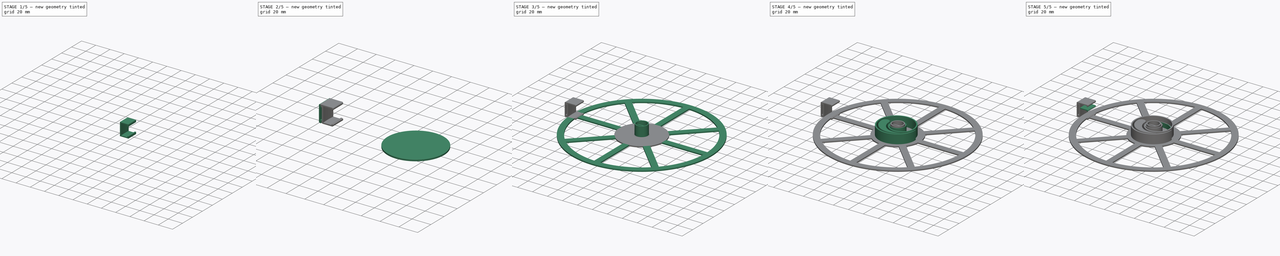
[diagram: build sequence overview — one tinted view per stage of 5, left to right]
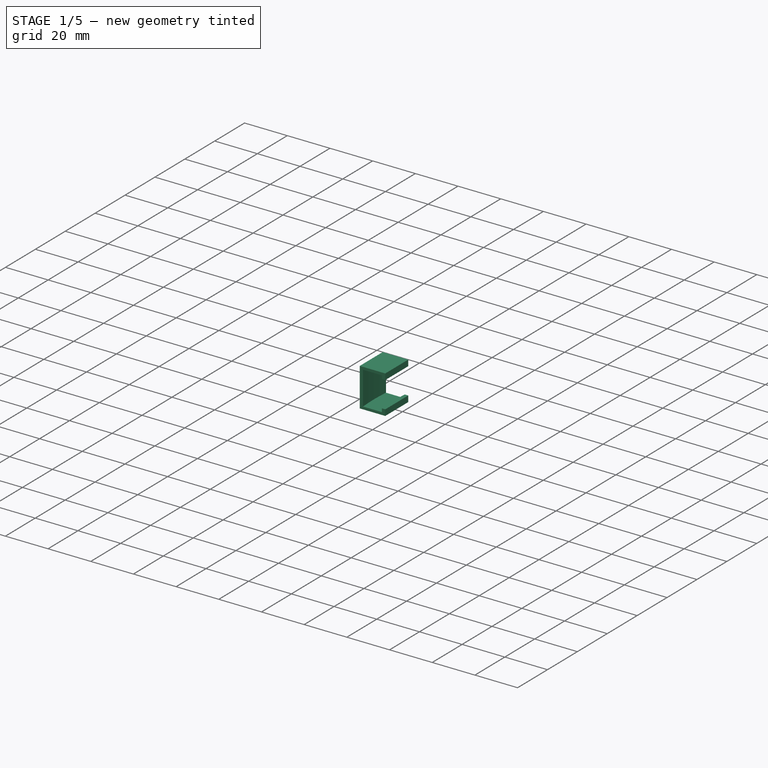
[diagram: stage 1 of 5 — iso view after this stage's code; geometry added in this stage tinted green]
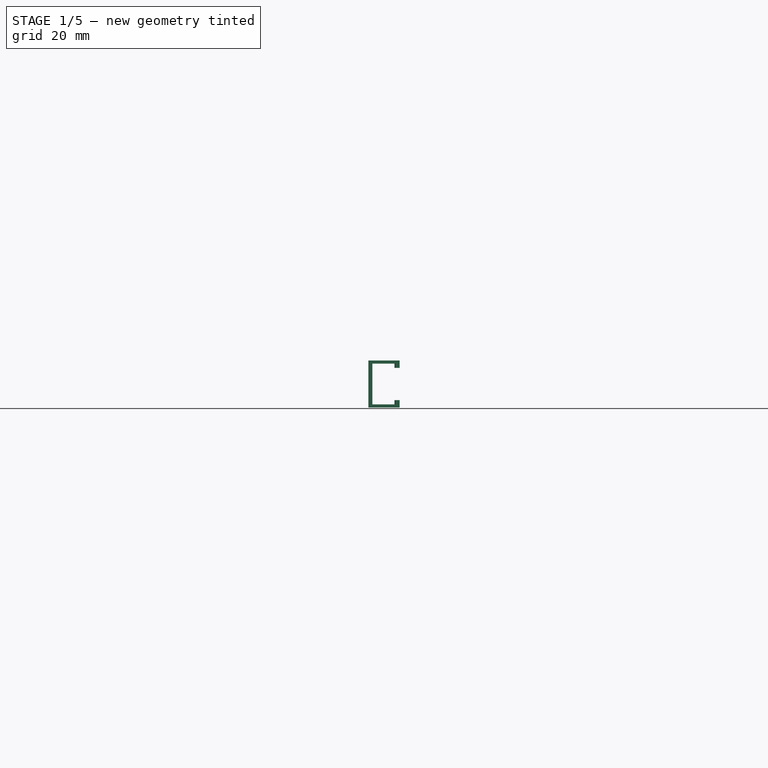
[diagram: stage 1 of 5 — front view after this stage's code; geometry added in this stage tinted green]
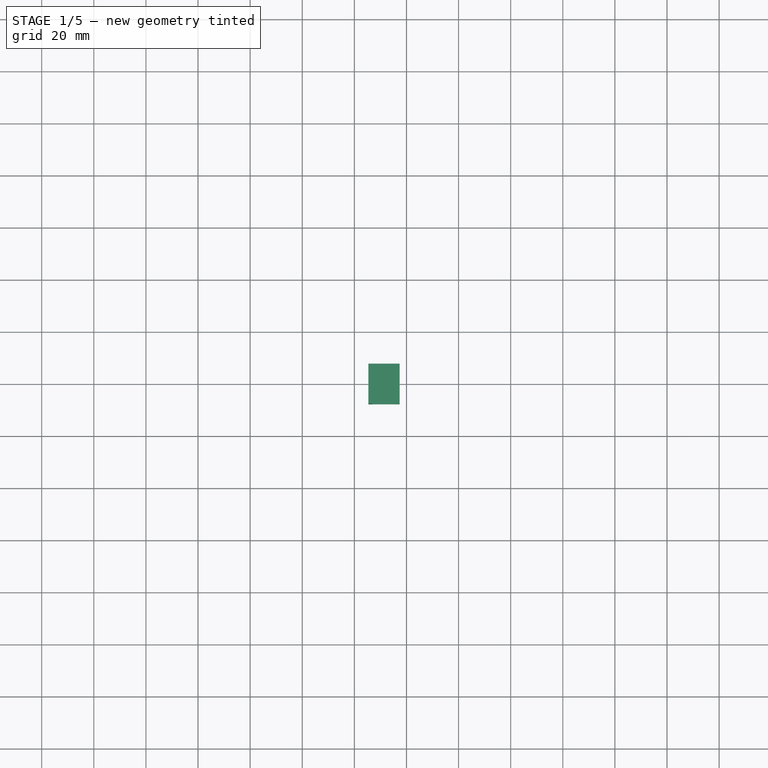
[diagram: stage 1 of 5 — top view after this stage's code; geometry added in this stage tinted green]
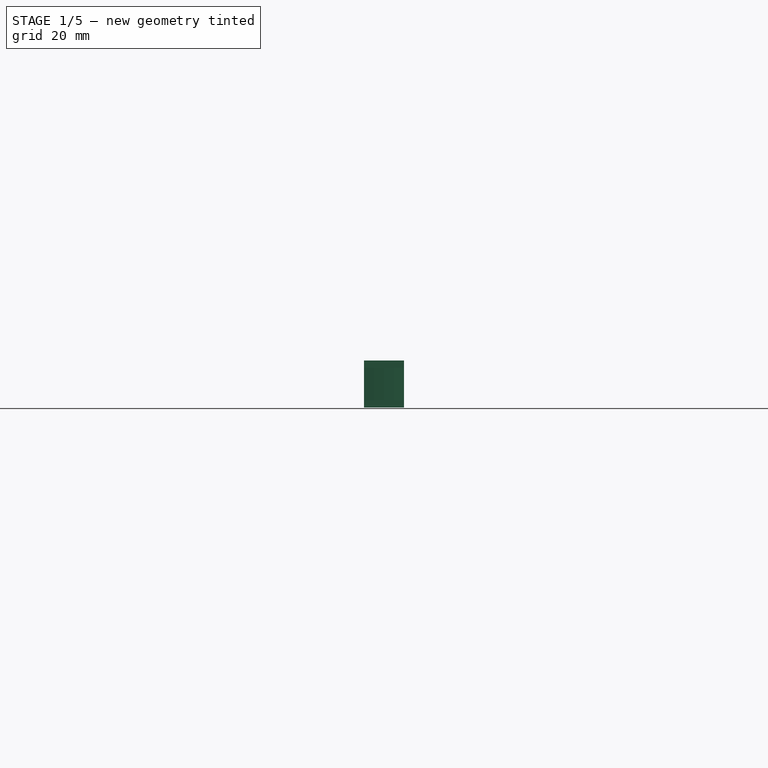
[diagram: stage 1 of 5 — right view after this stage's code; geometry added in this stage tinted green]
FCSTD DOCUMENT  (FreeCAD 1.0R39109 (Git))
Label: FlatEthCableSpool
License: All rights reserved
LicenseURL: http://en.wikipedia.org/wiki/All_rights_reserved
objects: Sketcher::SketchObject×37, PartDesign::Pad×27, PartDesign::ShapeBinder×12, PartDesign::Chamfer×10, PartDesign::Body×9, PartDesign::Pocket×7, PartDesign::Fillet×4, PartDesign::PolarPattern×2, PartDesign::FeatureBase×2, Spreadsheet::Sheet×1, PartDesign::Plane×1
note: 248 computed .brp shape members not serialized (recipe doc carries the construction recipe); baked Part::Feature solids carry a one-line shape summary decoded from their .brp

FEATURE [PartDesign::Body] Body001  label="Cap"
  AllowCompound = false
  Group = -> [Clone,ShapeBinder,ShapeBinder001,Sketch004,Pad002,Sketch011,Pocket002,Chamfer003]
  Origin = -> Origin001
  Tip = -> Chamfer003
FEATURE [Sketcher::SketchObject] Sketch012
  ArcFitTolerance = 1e-06
  AttachmentSupport = -> [XY_Plane]
  FullyConstrained = true
  MakeInternals = false
  MapMode = 5
  expr: Constraints[1] = <<Spreadsheet>>.WheelDiameter
  sketch-geometry (1):
    g0: Circle CenterX=0 CenterY=0 CenterZ=0 NormalX=0 NormalY=0 NormalZ=1 AngleXU=0 Radius=93
  constraints (2):
    c: Coincident(g0,g-1)
    c: Radius(g0) = 93
FEATURE [PartDesign::Pad] Pad008
  Direction = (0,0,1)
  Length = 1.6
  Length2 = 10
  Profile = -> Sketch012
  ReferenceAxis = -> Sketch012 [N_Axis]
  Suppressed = false
  Type = 0
FEATURE [Sketcher::SketchObject] Sketch014
  ArcFitTolerance = 1e-06
  AttachmentSupport = -> [XY_Plane]
  ExternalGeometry = -> [Sketch012]
  FullyConstrained = true
  MakeInternals = false
  MapMode = 5
  sketch-geometry (18):
    g0: LineSegment StartX=-29.7321 StartY=4 StartZ=0 EndX=-84.9058 EndY=4 EndZ=0
    g1: LineSegment StartX=-62.8659 StartY=57.2091 StartZ=0 EndX=-23.8522 EndY=18.1954 EndZ=0
    g2: ArcOfCircle CenterX=0 CenterY=0 CenterZ=0 NormalX=0 NormalY=0 NormalZ=1 AngleXU=0 Radius=30 StartAngle=2.48993 EndAngle=3.00786
    g3: ArcOfCircle CenterX=0 CenterY=0 CenterZ=0 NormalX=0 NormalY=0 NormalZ=1 AngleXU=0 Radius=85 StartAngle=2.40327 EndAngle=3.09452
    g4: LineSegment [constr] StartX=0 StartY=93 StartZ=0 EndX=0 EndY=-93 EndZ=0
    g5: LineSegment StartX=-18.1954 StartY=23.8522 StartZ=0 EndX=-57.2091 EndY=62.8659 EndZ=0
    g6: LineSegment [constr] StartX=-84.9058 StartY=4 StartZ=0 EndX=-84.9058 EndY=-4 EndZ=0
    g7: LineSegment [constr] StartX=-62.8659 StartY=57.2091 StartZ=0 EndX=-57.2091 EndY=62.8659 EndZ=0
    g8: ArcOfCircle CenterX=0 CenterY=0 CenterZ=0 NormalX=0 NormalY=0 NormalZ=1 AngleXU=0 Radius=85 StartAngle=1.61787 EndAngle=2.30912
    g9: LineSegment [constr] StartX=-93 StartY=0 StartZ=0 EndX=-84.9058 EndY=0 EndZ=0
    g10: LineSegment [constr] StartX=-84.9058 StartY=0 StartZ=0 EndX=93 EndY=0 EndZ=0
    g11: ArcOfCircle CenterX=0 CenterY=0 CenterZ=0 NormalX=0 NormalY=0 NormalZ=1 AngleXU=0 Radius=30 StartAngle=1.70453 EndAngle=2.22246
    g12: LineSegment StartX=-4 StartY=29.7321 StartZ=0 EndX=-4 EndY=84.9058 EndZ=0
    g13: LineSegment [constr] StartX=-4 StartY=84.9058 StartZ=0 EndX=4 EndY=84.9058 EndZ=0
    g14: LineSegment [constr] StartX=-84.9058 StartY=4 StartZ=0 EndX=-62.8659 EndY=57.2091 EndZ=0
    g15: LineSegment [constr] StartX=-57.2091 StartY=62.8659 StartZ=0 EndX=-4 EndY=84.9058 EndZ=0
    g16: LineSegment [constr] StartX=-78.5298 StartY=32.5281 StartZ=0 EndX=-26.7922 EndY=11.0977 EndZ=0
    g17: LineSegment [constr] StartX=-78.5298 StartY=32.5281 StartZ=0 EndX=-85.9208 EndY=35.5896 EndZ=0
  constraints (51):
    c: Horizontal(g0)
    c: Coincident(g2,g0)
    c: Coincident(g2,g1)
    c: Coincident(g3,g2)
    c: Coincident(g3,g0)
    c: Coincident(g3,g1)
    c: Radius(g2) = 30
    c: Angle(g1,g0) = 0.785398
    c: Vertical(g4)
    c: Coincident(g6,g0)
    c: Coincident(g7,g1)
    c: Coincident(g7,g5)
    c: Coincident(g8,g5)
    c: Equal(g8,g3)
    c: Coincident(g9,g10)
    c: Horizontal(g9)
    c: Horizontal(g10)
    c: Symmetric(g0,g6,g9)
    c: Vertical(g6)
    c: Parallel(g1,g5)
    c: Coincident(g11,g5)
    c: Equal(g11,g2)
    c: Coincident(g12,g11)
    c: Coincident(g12,g8)
    c: Vertical(g12)
    c: Coincident(g13,g8)
    c: Symmetric(g13,g8,g4)
    c: Equal(g6,g7)
    c: Equal(g7,g13)
    c: Coincident(g14,g0)
    c: Coincident(g14,g1)
    c: Coincident(g15,g5)
    c: Coincident(g15,g8)
    c: Equal(g14,g15)
    c: PointOnObject(g10,g-3)
    c: PointOnObject(g4,g-3)
    c: Coincident(g11,g2)
    c: Coincident(g11,g8)
    c: PointOnObject(g9,g-3)
    c: PointOnObject(g4,g-3)
    c: PointOnObject(g-3,g4)
    c: PointOnObject(g-3,g10)
    c: Coincident(g-3,g2)
    c: Symmetric(g1,g0,g16)
    c: PointOnObject(g16,g3)
    c: PointOnObject(g-3,g16)
    c: Coincident(g17,g16)
    c: PointOnObject(g17,g-3)
    c: Parallel(g17,g16)
    c: Distance(g17) = 8  'SpokeWidth'
    c: Equal(g17,g6)
FEATURE [PartDesign::Pocket] Pocket003
  BaseFeature = -> Pad008
  Direction = (0,0,-1)
  Length = 5
  Length2 = 5
  Profile = -> Sketch014
  ReferenceAxis = -> Sketch014 [N_Axis]
  Reversed = true
  Suppressed = false
  Type = 1
FEATURE [PartDesign::PolarPattern] PolarPattern001
  Angle = 360
  Axis = -> Sketch014 [N_Axis]
  BaseFeature = -> Pocket003
  Mode = 0
  Occurrences = 4
  Offset = 120
  Originals = -> [Pocket003]
  Suppressed = false
  TransformMode = 0
FEATURE [Sketcher::SketchObject] Sketch015
  ArcFitTolerance = 1e-06
  AttachmentOffset = pos=(0,0,1.6) rot=(0,0,1;0rad)
  AttachmentSupport = -> [XY_Plane]
  ExternalGeometry = -> [Sketch012]
  FullyConstrained = true
  MakeInternals = false
  MapMode = 5
  Placement = pos=(0,0,1.6) rot=(0,0,1;0rad)
  expr: .AttachmentOffset.Base.z = <<Pad008>>.Length
  sketch-geometry (1):
    g0: Circle CenterX=0 CenterY=0 CenterZ=0 NormalX=0 NormalY=0 NormalZ=1 AngleXU=0 Radius=8
  constraints (2):
    c: Radius(g0) = 8
    c: Coincident(g0,g-3)
FEATURE [Sketcher::SketchObject] Sketch013
  ArcFitTolerance = 1e-06
  AttachmentOffset = pos=(0,0,1.6) rot=(0,0,1;0rad)
  AttachmentSupport = -> [XY_Plane]
  ExternalGeometry = -> [Sketch012,Sketch015]
  FullyConstrained = true
  MakeInternals = false
  MapMode = 5
  Placement = pos=(0,0,1.6) rot=(0,0,1;0rad)
  expr: .AttachmentOffset.Base.z = <<Pad008>>.Length
  sketch-geometry (30):
    g0: ArcOfCircle CenterX=1.0615e-12 CenterY=8.65e-13 CenterZ=0 NormalX=0 NormalY=0 NormalZ=1 AngleXU=0 Radius=23.4 StartAngle=3.14159 EndAngle=6.28319
    g1: ArcOfCircle CenterX=-1.75 CenterY=1.01326e-11 CenterZ=0 NormalX=0 NormalY=0 NormalZ=1 AngleXU=0 Radius=23.25 StartAngle=-1.599e-13 EndAngle=3.14159
    g2: ArcOfCircle CenterX=-1.75 CenterY=1.01326e-11 CenterZ=0 NormalX=0 NormalY=0 NormalZ=1 AngleXU=0 Radius=21.65 StartAngle=-1.714e-13 EndAngle=3.14159
    g3: LineSegment [constr] StartX=21.5 StartY=6.4214e-12 StartZ=0 EndX=23.4 EndY=6.4214e-12 EndZ=0
    g4: LineSegment [constr] StartX=23.4 StartY=6.4214e-12 StartZ=0 EndX=25 EndY=6.4214e-12 EndZ=0
    g5: LineSegment [constr] StartX=19.9 StartY=6.4214e-12 StartZ=0 EndX=21.5 EndY=6.4214e-12 EndZ=0
    g6: Circle CenterX=1.0615e-12 CenterY=8.65e-13 CenterZ=0 NormalX=0 NormalY=0 NormalZ=1 AngleXU=0 Radius=8
    g7: LineSegment [constr] StartX=-21.5 StartY=6.4214e-12 StartZ=0 EndX=-11.5 EndY=6.4214e-12 EndZ=0
    g8: LineSegment [constr] StartX=-25 StartY=6.4214e-12 StartZ=0 EndX=-23.4 EndY=6.4214e-12 EndZ=0
    g9: LineSegment [constr] StartX=-23.4 StartY=6.4214e-12 StartZ=0 EndX=-21.5 EndY=6.4214e-12 EndZ=0
    g10: LineSegment [constr] StartX=-8 StartY=6.4214e-12 StartZ=0 EndX=19.9 EndY=6.4214e-12 EndZ=0
    g11: LineSegment [constr] StartX=-11.5 StartY=6.4214e-12 StartZ=0 EndX=-9.6 EndY=6.4214e-12 EndZ=0
    g12: LineSegment [constr] StartX=-9.6 StartY=6.4214e-12 StartZ=0 EndX=-8 EndY=6.4214e-12 EndZ=0
    g13: ArcOfCircle CenterX=5.95 CenterY=1.3502e-09 CenterZ=0 NormalX=0 NormalY=0 NormalZ=1 AngleXU=0 Radius=15.55 StartAngle=3.14159 EndAngle=6.28319
    g14: ArcOfCircle CenterX=1.0615e-12 CenterY=8.65e-13 CenterZ=0 NormalX=0 NormalY=0 NormalZ=1 AngleXU=0 Radius=9.6 StartAngle=4.08524 EndAngle=9.42478
    g15: ArcOfCircle [constr] CenterX=1.0615e-12 CenterY=8.65e-13 CenterZ=0 NormalX=0 NormalY=0 NormalZ=1 AngleXU=0 Radius=9.6 StartAngle=3.14159 EndAngle=4.08524
    g16: ArcOfCircle [constr] CenterX=5.95 CenterY=9.5323e-12 CenterZ=0 NormalX=0 NormalY=0 NormalZ=1 AngleXU=0 Radius=13.95 StartAngle=3.14159 EndAngle=3.73262
    g17: ArcOfCircle CenterX=5.95 CenterY=9.5323e-12 CenterZ=0 NormalX=0 NormalY=0 NormalZ=1 AngleXU=0 Radius=13.95 StartAngle=3.73262 EndAngle=6.28319
    g18: ArcOfCircle CenterX=-16.5 CenterY=6.4192e-12 CenterZ=0 NormalX=0 NormalY=0 NormalZ=1 AngleXU=0 Radius=5 StartAngle=0 EndAngle=3.14159
    g19: ArcOfCircle CenterX=1.0615e-12 CenterY=8.65e-13 CenterZ=0 NormalX=0 NormalY=0 NormalZ=1 AngleXU=0 Radius=21.5 StartAngle=3.14159 EndAngle=5.45062
    g20: ArcOfCircle CenterX=5.95 CenterY=1.3502e-09 CenterZ=0 NormalX=0 NormalY=0 NormalZ=1 AngleXU=0 Radius=17.45 StartAngle=3.14159 EndAngle=5.20007
    g21: ArcOfCircle CenterX=14.2672 CenterY=-15.6808 CenterZ=0 NormalX=0 NormalY=0 NormalZ=1 AngleXU=0 Radius=0.3 StartAngle=5.45062 EndAngle=8.34166
    g22: ArcOfCircle CenterX=1.0615e-12 CenterY=8.65e-13 CenterZ=0 NormalX=0 NormalY=0 NormalZ=1 AngleXU=0 Radius=25 StartAngle=3.14159 EndAngle=5.49779
    g23: ArcOfCircle [constr] CenterX=1.0615e-12 CenterY=8.65e-13 CenterZ=0 NormalX=0 NormalY=0 NormalZ=1 AngleXU=0 Radius=25 StartAngle=5.49779 EndAngle=6.28319
    g24: LineSegment [constr] StartX=0 StartY=0 StartZ=0 EndX=17.6777 EndY=-17.6777 EndZ=0
    g25: LineSegment [constr] StartX=6e-16 StartY=23.184 StartZ=0 EndX=6e-16 EndY=-25 EndZ=0
    g26: LineSegment [constr] StartX=6e-16 StartY=-25 StartZ=0 EndX=17.6777 EndY=-17.6777 EndZ=0
    g27: LineSegment [constr] StartX=17.6777 StartY=-17.6777 StartZ=0 EndX=25 EndY=6.4198e-12 EndZ=0
    g28: ArcOfCircle CenterX=2.1632 CenterY=-2.1632 CenterZ=0 NormalX=0 NormalY=0 NormalZ=1 AngleXU=0 Radius=21.9408 StartAngle=5.49779 EndAngle=6.38194
    g29: ArcOfCircle CenterX=23.6985 CenterY=-0.0295778 CenterZ=0 NormalX=0 NormalY=0 NormalZ=1 AngleXU=0 Radius=0.3 StartAngle=0.0987529 EndAngle=3.04284
  constraints (80):
    c: Coincident(g0,g22)
    c: Coincident(g1,g8)
    c: Coincident(g5,g1)
    c: Coincident(g2,g1)
    c: Coincident(g3,g5)
    c: Horizontal(g3)
    c: Coincident(g4,g3)
    c: Horizontal(g4)
    c: Coincident(g23,g4)
    c: Coincident(g22,g1)
    c: Coincident(g0,g3)
    c: Coincident(g0,g2)
    c: Coincident(g10,g5)
    c: Horizontal(g5)
    c: Coincident(g10,g2)
    c: DistanceX(g3,g3) = 1.9
    c: Coincident(g6,g22)
    c: Coincident(g9,g7)
    c: Coincident(g7,g11)
    c: Horizontal(g7)
    c: Coincident(g8,g9)
    c: Horizontal(g8)
    c: Horizontal(g9)
    c: PointOnObject(g22,g8)
    c: PointOnObject(g1,g8)
    c: Coincident(g8,g0)
    c: Coincident(g12,g10)
    c: Horizontal(g10)
    c: PointOnObject(g12,g6)
    c: Coincident(g11,g12)
    c: Horizontal(g11)
    c: Horizontal(g12)
    c: Coincident(g14,g22)
    c: Equal(g9,g11)
    c: DistanceX(g11,g11) = 1.9
    c: Coincident(g6,g-3)  '__ANCHOR__'
    c: Tangent(g16,g6) = -1.5708
    c: Tangent(g17,g2) = -1.5708
    c: Tangent(g13,g1) = -1.5708
    c: Coincident(g14,g15)
    c: Coincident(g14,g15)
    c: Tangent(g13,g14) = -1.5708
    c: Coincident(g14,g11)
    c: Coincident(g16,g17)
    c: Coincident(g16,g17)
    c: Coincident(g16,g14)
    c: PointOnObject(g15,g16)
    c: Equal(g-4,g6)
    c: Coincident(g18,g7)
    c: Coincident(g18,g7)
    c: PointOnObject(g18,g7)
    c: Coincident(g19,g7)
    c: Coincident(g0,g19)
    c: Coincident(g20,g7)
    c: Coincident(g20,g13)
    c: Diameter(g21) = 0.6
    c: Coincident(g22,g23)
    c: Coincident(g22,g23)
    c: Radius(g22) = 25  'Ro'
    c: Coincident(g24,g22)
    c: PointOnObject(g25,g1)
    c: PointOnObject(g25,g22)
    c: Vertical(g25)
    c: PointOnObject(g-4,g25)
    c: Coincident(g-4,g24)
    c: Coincident(g26,g25)
    c: Coincident(g26,g22)
    c: Coincident(g27,g22)
    c: Coincident(g27,g4)
    c: Equal(g26,g27)
    c: Tangent(g19,g21) = -1.5708
    c: Tangent(g21,g20) = 1.5708
    c: Equal(g12,g8)
    c: Tangent(g28,g22) = -1.5708
    c: PointOnObject(g28,g4)
    c: Coincident(g29,g0)
    c: Tangent(g29,g28) = -1.5708
    c: Radius(g29) = 0.3
    c: DistanceX(g8,g8) = 1.6
    c: Radius(g18) = 5
FEATURE [PartDesign::Pocket] Pocket004
  BaseFeature = -> PolarPattern001
  Direction = (0,0,-1)
  Length = 5
  Length2 = 5
  Profile = -> Sketch015
  ReferenceAxis = -> Sketch015 [N_Axis]
  Suppressed = false
  Type = 1
FEATURE [PartDesign::Pad] Pad009
  BaseFeature = -> Pocket004
  Direction = (0,0,1)
  Length = 12
  Length2 = 10
  Profile = -> Sketch013
  ReferenceAxis = -> Sketch013 [N_Axis]
  Suppressed = false
  Type = 0
FEATURE [PartDesign::Body] Body005  label="Lock_D"
  AllowCompound = false
  Group = -> [ShapeBinder006,ShapeBinder007,Sketch017,Sketch018,Pad011,Sketch019,Pad012,Sketch020,Pad013,Sketch021,Pad014,Sketch022,Pad015,Chamfer004,Fillet002]
  Origin = -> Origin005
  Placement = pos=(0,0,-1.4) rot=(0,0,1;0rad)
  Tip = -> Fillet002
  expr: .Placement.Base.z = -<<Pad011>>.Length - 0.2 mm
FEATURE [PartDesign::ShapeBinder] ShapeBinder010
  Support = -> [Sketch012]
  TraceSupport = false
FEATURE [PartDesign::ShapeBinder] ShapeBinder011
  Support = -> [Sketch014]
  TraceSupport = false
FEATURE [Sketcher::SketchObject] Sketch030
  ArcFitTolerance = 1e-06
  AttachmentSupport = -> [XY_Plane005]
  ExternalGeometry = -> [ShapeBinder011,ShapeBinder010]
  FullyConstrained = true
  MakeInternals = false
  MapMode = 5
  expr: Constraints[17] = <<Spreadsheet>>.WallThickness
  expr: Constraints[34] = <<Sketch014>>.Constraints.SpokeWidth + <<Spreadsheet>>.LockTolerance * 2
  expr: Constraints[37] = <<Spreadsheet>>.ThinWallThickness
  sketch-geometry (15):
    g0: LineSegment StartX=-84.2505 StartY=-7.68248 StartZ=0 EndX=-93.0835 EndY=-7.68248 EndZ=0
    g1: LineSegment StartX=-84.2505 StartY=7.68248 StartZ=0 EndX=-93.0835 EndY=7.68248 EndZ=0
    g2: LineSegment [constr] StartX=-93.4 StartY=0 StartZ=0 EndX=-93 EndY=0 EndZ=0
    g3: LineSegment [constr] StartX=-93 StartY=0 StartZ=0 EndX=-85 EndY=0 EndZ=0
    g4: LineSegment [constr] StartX=-85 StartY=0 StartZ=0 EndX=-84.6 EndY=0 EndZ=0
    g5: LineSegment StartX=-93.0835 StartY=7.68248 StartZ=0 EndX=-94.6 EndY=7.68248 EndZ=0
    g6: LineSegment StartX=-93.0835 StartY=-7.68248 StartZ=0 EndX=-94.6 EndY=-7.68248 EndZ=0
    g7: LineSegment StartX=-84.2505 StartY=7.68248 StartZ=0 EndX=-82.6505 EndY=7.68248 EndZ=0
    g8: LineSegment StartX=-84.2505 StartY=-7.68248 StartZ=0 EndX=-82.6505 EndY=-7.68248 EndZ=0
    g9: LineSegment [constr] StartX=-23.8522 StartY=18.1954 StartZ=0 EndX=-29.7321 EndY=4 EndZ=0
    g10: LineSegment StartX=-82.6505 StartY=7.68248 StartZ=0 EndX=-82.6505 EndY=-7.68248 EndZ=0
    g11: ArcOfCircle CenterX=0 CenterY=0 CenterZ=0 NormalX=0 NormalY=0 NormalZ=1 AngleXU=0 Radius=84.6 StartAngle=3.05066 EndAngle=3.23253
    g12: ArcOfCircle CenterX=0 CenterY=0 CenterZ=0 NormalX=0 NormalY=0 NormalZ=1 AngleXU=0 Radius=93.4 StartAngle=3.05925 EndAngle=3.22394
    g13: LineSegment [constr] StartX=-93.4 StartY=0 StartZ=0 EndX=-94.6 EndY=0 EndZ=0
    g14: LineSegment StartX=-94.6 StartY=7.68248 StartZ=0 EndX=-94.6 EndY=-7.68248 EndZ=0
  constraints (43):
    c: PointOnObject(g2,g-4)
    c: PointOnObject(g3,g-3)
    c: Coincident(g2,g3)
    c: Coincident(g4,g3)
    c: Coincident(g6,g0)
    c: Equal(g4,g2)
    c: Coincident(g9,g-5)
    c: Coincident(g9,g-6)
    c: Equal(g9,g10)
    c: Coincident(g11,g1)
    c: Coincident(g11,g0)
    c: Coincident(g8,g0)
    c: Coincident(g7,g1)
    c: Coincident(g11,g-4)
    c: PointOnObject(g4,g11)
    c: Coincident(g8,g10)
    c: Coincident(g7,g10)
    c: DistanceX(g7,g7) = 1.6
    c: Horizontal(g3)
    c: Horizontal(g2)
    c: Horizontal(g8)
    c: Horizontal(g0)
    c: Horizontal(g6)
    c: Horizontal(g5)
    c: Horizontal(g1)
    c: Horizontal(g7)
    c: Horizontal(g4)
    c: PointOnObject(g-4,g3)
    c: Coincident(g12,g1)
    c: Coincident(g12,g0)
    c: Coincident(g1,g5)
    c: Coincident(g12,g-4)
    c: PointOnObject(g2,g12)
    c: Symmetric(g8,g7,g3)
    c: DistanceX(g2,g4) = 8.8
    c: Coincident(g13,g2)
    c: Horizontal(g13)
    c: DistanceX(g13,g13) = 1.2
    c: Coincident(g14,g5)
    c: Coincident(g14,g6)
    c: Vertical(g14)
    c: PointOnObject(g13,g14)
    c: DistanceY(g6,g5) = 15.365  'Length'
FEATURE [PartDesign::Plane] DatumPlane
  AttachmentSupport = -> [Sketch030]
  Length = 138.259
  MapMode = 7
  Placement = pos=(-94.6,-7.68248,0) rot=(0,0.707107,0.707107;3.14159rad)
  ResizeMode = 0
  Width = 65.6589
FEATURE [Sketcher::SketchObject] Sketch031
  ArcFitTolerance = 1e-06
  AttachmentSupport = -> [DatumPlane]
  ExternalGeometry = -> [Sketch030]
  FullyConstrained = true
  MakeInternals = false
  MapMode = 5
  Placement = pos=(-94.6,-7.68248,0) rot=(0,0.707107,0.707107;3.14159rad)
  expr: Constraints[22] = <<Spreadsheet>>.ThinWallThickness
  expr: Constraints[9] = <<Pad021>>.Length + <<Pad022>>.Length + <<Pad023>>.Length
  sketch-geometry (8):
    g0: LineSegment StartX=1.51e-14 StartY=15.1 StartZ=0 EndX=1.51e-14 EndY=18 EndZ=0
    g1: LineSegment StartX=1.51e-14 StartY=18 StartZ=0 EndX=3 EndY=18 EndZ=0
    g2: LineSegment StartX=3 StartY=18 StartZ=0 EndX=3 EndY=0 EndZ=0
    g3: LineSegment StartX=3 StartY=0 StartZ=0 EndX=0.2 EndY=0 EndZ=0
    g4: LineSegment StartX=0.2 StartY=0 StartZ=0 EndX=0.2 EndY=2.9 EndZ=0
    g5: LineSegment StartX=0.2 StartY=2.9 StartZ=0 EndX=1.8 EndY=2.9 EndZ=0
    g6: LineSegment StartX=1.8 StartY=2.9 StartZ=0 EndX=1.8 EndY=15.1 EndZ=0
    g7: LineSegment StartX=1.8 StartY=15.1 StartZ=0 EndX=1.51e-14 EndY=15.1 EndZ=0
  constraints (24):
    c: PointOnObject(g0,g-2)
    c: Coincident(g1,g0)
    c: Horizontal(g1)
    c: Vertical(g2)
    c: Coincident(g3,g2)
    c: Horizontal(g3)
    c: Coincident(g1,g2)
    c: PointOnObject(g-3,g3)
    c: DistanceX(g-3,g3) = 0.2
    c: DistanceY(g2,g2) = 18
    c: Vertical(g0)
    c: Coincident(g4,g3)
    c: Vertical(g4)
    c: Coincident(g5,g4)
    c: Horizontal(g5)
    c: Coincident(g6,g5)
    c: Vertical(g6)
    c: Coincident(g7,g6)
    c: Coincident(g7,g0)
    c: Horizontal(g7)
    c: Equal(g4,g0)
    c: DistanceY(g4,g0) = 12.2
    c: DistanceX(g6,g1) = 1.2
    c: DistanceX(g0,g6) = 1.8
FEATURE [Sketcher::SketchObject] Sketch032
  ArcFitTolerance = 1e-06
  AttachmentSupport = -> [XY_Plane005]
  ExternalGeometry = -> [Sketch030]
  FullyConstrained = true
  MakeInternals = false
  MapMode = 5
  sketch-geometry (4):
    g0: LineSegment StartX=-94.6 StartY=7.68248 StartZ=0 EndX=-94.6 EndY=-7.68248 EndZ=0
    g1: LineSegment StartX=-94.6 StartY=-7.68248 StartZ=0 EndX=-82.6505 EndY=-7.68248 EndZ=0
    g2: LineSegment StartX=-82.6505 StartY=-7.68248 StartZ=0 EndX=-82.6505 EndY=7.68248 EndZ=0
    g3: LineSegment StartX=-82.6505 StartY=7.68248 StartZ=0 EndX=-94.6 EndY=7.68248 EndZ=0
  constraints (8):
    c: Coincident(g0,g1)
    c: Coincident(g1,g2)
    c: Coincident(g2,g3)
    c: Coincident(g3,g0)
    c: Coincident(g0,g-3)
    c: Coincident(g1,g-4)
    c: Coincident(g2,g-4)
    c: Coincident(g0,g-3)
FEATURE [PartDesign::Pad] Pad021
  Direction = (0,0,1)
  Length = 1.2
  Length2 = 10
  Profile = -> Sketch032
  ReferenceAxis = -> Sketch032 [N_Axis]
  Suppressed = false
  Type = 0
  expr: Length = <<Spreadsheet>>.ThinWallThickness
FEATURE [Sketcher::SketchObject] Sketch033
  ArcFitTolerance = 1e-06
  AttachmentOffset = pos=(0,0,1.2) rot=(0,0,1;0rad)
  AttachmentSupport = -> [XY_Plane005]
  ExternalGeometry = -> [Sketch030]
  FullyConstrained = true
  MakeInternals = false
  MapMode = 5
  Placement = pos=(0,0,1.2) rot=(0,0,1;0rad)
  expr: .AttachmentOffset.Base.z = <<Pad021>>.Length
  sketch-geometry (4):
    g0: ArcOfCircle CenterX=7.8e-15 CenterY=-1.99e-14 CenterZ=0 NormalX=0 NormalY=0 NormalZ=1 AngleXU=0 Radius=93.4 StartAngle=3.05925 EndAngle=3.22394
    g1: LineSegment StartX=-93.0835 StartY=7.68248 StartZ=0 EndX=-94.6 EndY=7.68248 EndZ=0
    g2: LineSegment StartX=-94.6 StartY=7.68248 StartZ=0 EndX=-94.6 EndY=-7.68248 EndZ=0
    g3: LineSegment StartX=-94.6 StartY=-7.68248 StartZ=0 EndX=-93.0835 EndY=-7.68248 EndZ=0
  constraints (9):
    c: Coincident(g0,g-3)
    c: Coincident(g0,g-3)
    c: Equal(g-3,g0)
    c: Coincident(g0,g1)
    c: Coincident(g1,g-4)
    c: Coincident(g1,g2)
    c: Coincident(g2,g-4)
    c: Coincident(g2,g3)
    c: Coincident(g3,g0)
FEATURE [PartDesign::Pad] Pad022
  BaseFeature = -> Pad021
  Direction = (0,0,1)
  Length = 15.6
  Length2 = 10
  Profile = -> Sketch033
  ReferenceAxis = -> Sketch033 [N_Axis]
  Suppressed = false
  Type = 0
  expr: Length = <<Pad008>>.Length * 2 + <<Pad009>>.Length + <<Spreadsheet>>.LockTolerance
FEATURE [Sketcher::SketchObject] Sketch034
  ArcFitTolerance = 1e-06
  AttachmentOffset = pos=(0,0,16.8) rot=(0,0,1;0rad)
  AttachmentSupport = -> [XY_Plane005]
  ExternalGeometry = -> [Sketch030]
  FullyConstrained = true
  MakeInternals = false
  MapMode = 5
  Placement = pos=(0,0,16.8) rot=(0,0,1;0rad)
  expr: .AttachmentOffset.Base.z = <<Pad021>>.Length + <<Pad022>>.Length
  sketch-geometry (4):
    g0: LineSegment StartX=-94.6 StartY=7.68248 StartZ=0 EndX=-94.6 EndY=-7.68248 EndZ=0
    g1: LineSegment StartX=-94.6 StartY=-7.68248 StartZ=0 EndX=-82.6505 EndY=-7.68248 EndZ=0
    g2: LineSegment StartX=-82.6505 StartY=-7.68248 StartZ=0 EndX=-82.6505 EndY=7.68248 EndZ=0
    g3: LineSegment StartX=-82.6505 StartY=7.68248 StartZ=0 EndX=-94.6 EndY=7.68248 EndZ=0
  constraints (8):
    c: Coincident(g0,g1)
    c: Coincident(g1,g2)
    c: Coincident(g2,g3)
    c: Coincident(g3,g0)
    c: Coincident(g0,g-3)
    c: Coincident(g1,g-4)
    c: Coincident(g2,g-4)
    c: Coincident(g0,g-3)
FEATURE [PartDesign::Pad] Pad023
  BaseFeature = -> Pad022
  Direction = (0,0,1)
  Length = 1.2
  Length2 = 10
  Profile = -> Sketch034
  ReferenceAxis = -> Sketch034 [N_Axis]
  Suppressed = false
  Type = 0
  expr: Length = <<Pad021>>.Length
FEATURE [Sketcher::SketchObject] Sketch035
  ArcFitTolerance = 1e-06
  AttachmentOffset = pos=(0,0,1.2) rot=(0,0,1;0rad)
  AttachmentSupport = -> [XY_Plane005]
  ExternalGeometry = -> [Sketch030]
  FullyConstrained = true
  MakeInternals = false
  MapMode = 5
  Placement = pos=(0,0,1.2) rot=(0,0,1;0rad)
  expr: .AttachmentOffset.Base.z = <<Pad021>>.Length
  sketch-geometry (4):
    g0: ArcOfCircle CenterX=8.655e-13 CenterY=-3.78e-14 CenterZ=0 NormalX=0 NormalY=0 NormalZ=1 AngleXU=0 Radius=84.6 StartAngle=3.05066 EndAngle=3.23253
    g1: LineSegment StartX=-84.2505 StartY=7.68248 StartZ=0 EndX=-82.6505 EndY=7.68248 EndZ=0
    g2: LineSegment StartX=-82.6505 StartY=7.68248 StartZ=0 EndX=-82.6505 EndY=-7.68248 EndZ=0
    g3: LineSegment StartX=-82.6505 StartY=-7.68248 StartZ=0 EndX=-84.2505 EndY=-7.68248 EndZ=0
  constraints (9):
    c: Coincident(g0,g-3)
    c: Coincident(g0,g-3)
    c: Equal(g-3,g0)
    c: Coincident(g0,g1)
    c: Coincident(g1,g-4)
    c: Coincident(g1,g2)
    c: Coincident(g2,g-4)
    c: Coincident(g2,g3)
    c: Coincident(g3,g0)
FEATURE [PartDesign::Pad] Pad024
  BaseFeature = -> Pad023
  Direction = (0,0,1)
  Length = 1.6
  Length2 = 10
  Profile = -> Sketch035
  ReferenceAxis = -> Sketch035 [N_Axis]
  Suppressed = false
  Type = 0
FEATURE [Sketcher::SketchObject] Sketch036
  ArcFitTolerance = 1e-06
  AttachmentOffset = pos=(0,0,16.8) rot=(0,0,1;0rad)
  AttachmentSupport = -> [XY_Plane005]
  ExternalGeometry = -> [Sketch030]
  FullyConstrained = true
  MakeInternals = false
  MapMode = 5
  Placement = pos=(0,0,16.8) rot=(0,0,1;0rad)
  expr: .AttachmentOffset.Base.z = <<Pad021>>.Length + <<Pad022>>.Length
  sketch-geometry (4):
    g0: ArcOfCircle CenterX=8.639e-13 CenterY=-5.63e-14 CenterZ=0 NormalX=0 NormalY=0 NormalZ=1 AngleXU=0 Radius=84.6 StartAngle=3.05066 EndAngle=3.23253
    g1: LineSegment StartX=-84.2505 StartY=7.68248 StartZ=0 EndX=-82.6505 EndY=7.68248 EndZ=0
    g2: LineSegment StartX=-82.6505 StartY=7.68248 StartZ=0 EndX=-82.6505 EndY=-7.68248 EndZ=0
    g3: LineSegment StartX=-82.6505 StartY=-7.68248 StartZ=0 EndX=-84.2505 EndY=-7.68248 EndZ=0
  constraints (9):
    c: Coincident(g0,g-3)
    c: Coincident(g0,g-3)
    c: Equal(g-3,g0)
    c: Coincident(g0,g1)
    c: Coincident(g1,g-4)
    c: Coincident(g1,g2)
    c: Coincident(g2,g-4)
    c: Coincident(g2,g3)
    c: Coincident(g3,g0)
FEATURE [PartDesign::Pad] Pad025
  BaseFeature = -> Pad024
  Direction = (0,0,1)
  Length = 1.6
  Length2 = 10
  Profile = -> Sketch036
  ReferenceAxis = -> Sketch036 [N_Axis]
  Reversed = true
  Suppressed = false
  Type = 0
  expr: Length = <<Pad024>>.Length
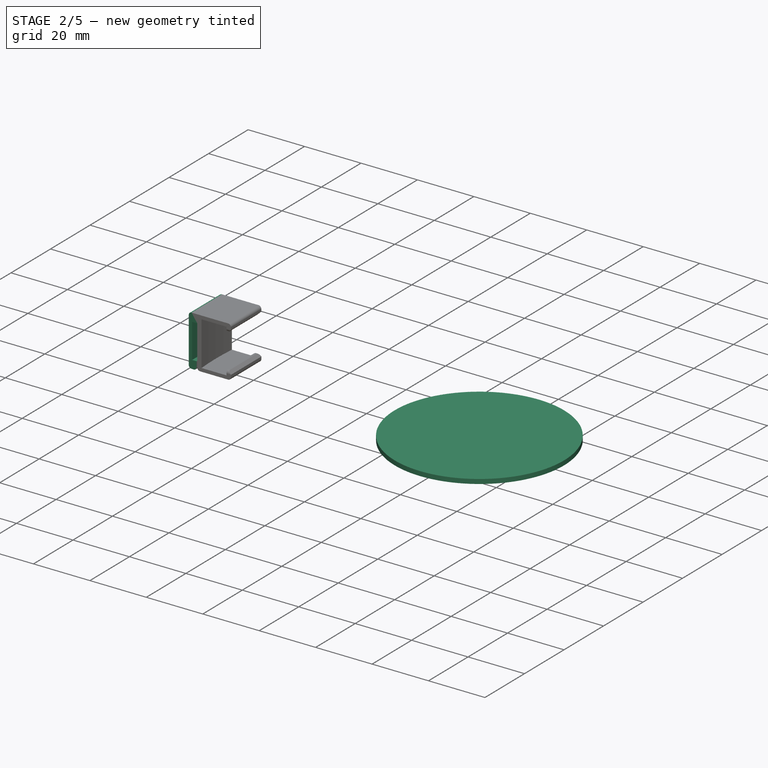
[diagram: stage 2 of 5 — iso view after this stage's code; geometry added in this stage tinted green]
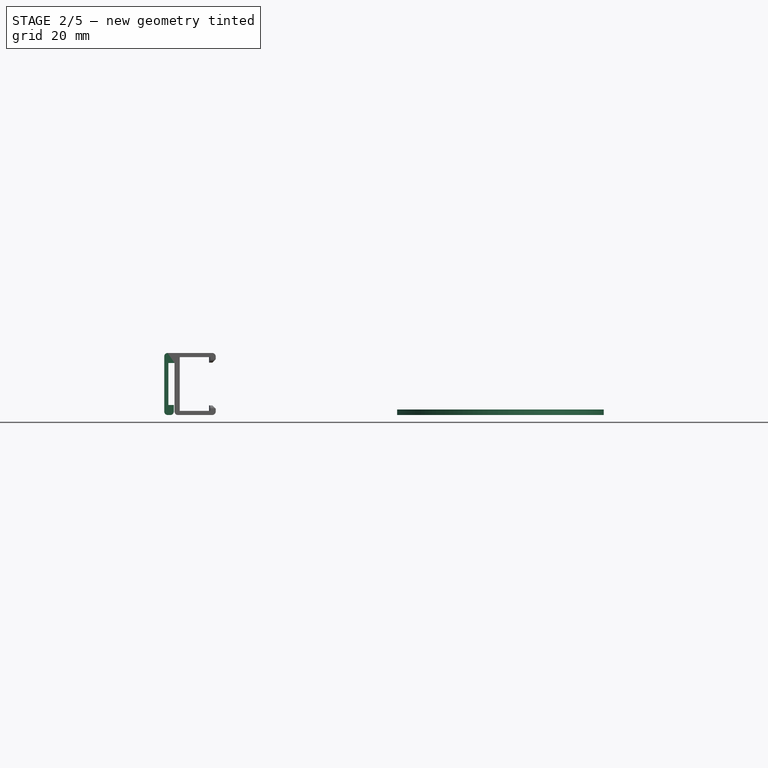
[diagram: stage 2 of 5 — front view after this stage's code; geometry added in this stage tinted green]
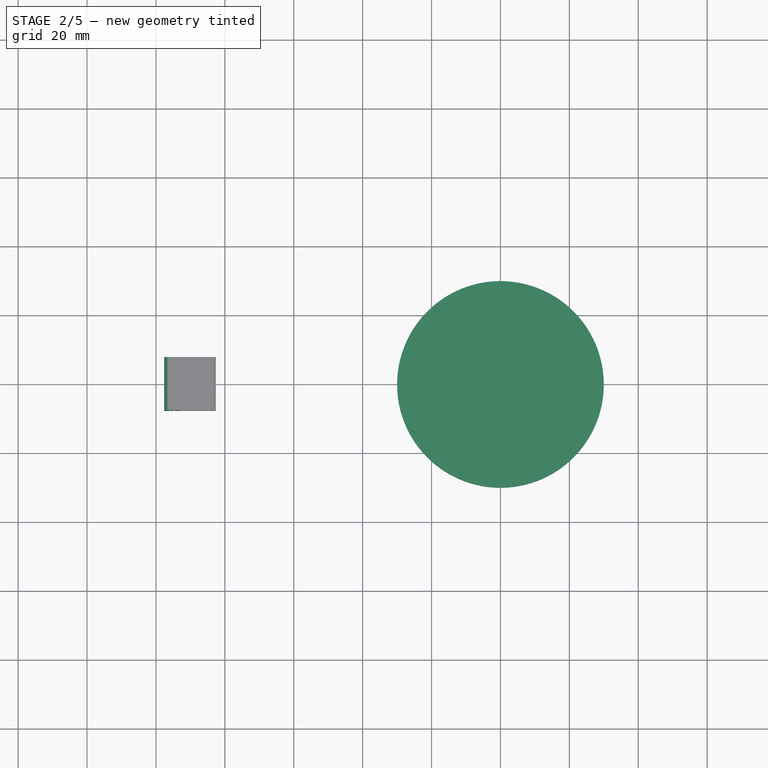
[diagram: stage 2 of 5 — top view after this stage's code; geometry added in this stage tinted green]
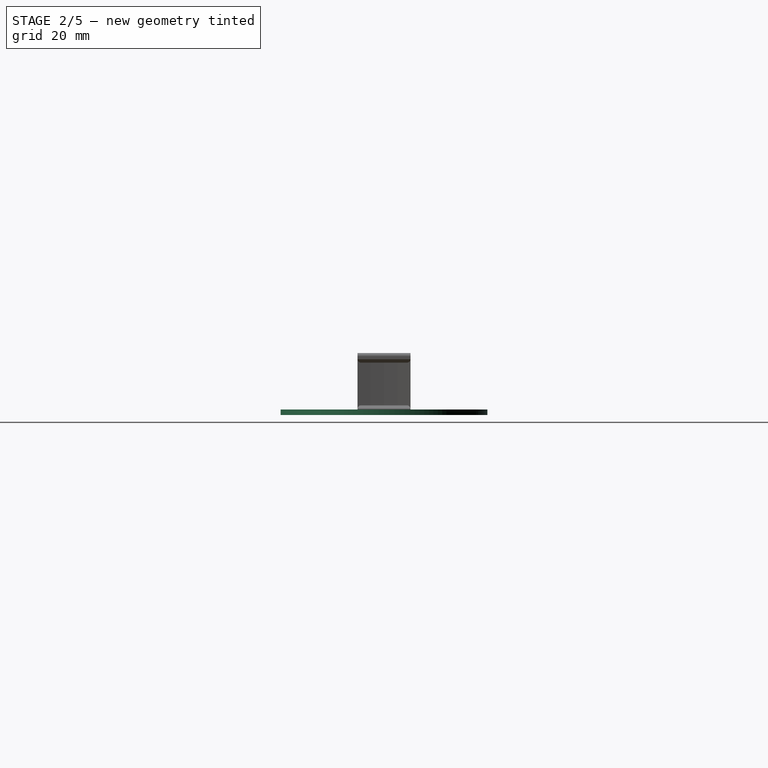
[diagram: stage 2 of 5 — right view after this stage's code; geometry added in this stage tinted green]
FEATURE [PartDesign::ShapeBinder] ShapeBinder006
  Support = -> [Sketch012]
  TraceSupport = false
FEATURE [PartDesign::ShapeBinder] ShapeBinder007
  Support = -> [Sketch014]
  TraceSupport = false
FEATURE [Sketcher::SketchObject] Sketch017
  ArcFitTolerance = 1e-06
  AttachmentSupport = -> [XY_Plane002]
  ExternalGeometry = -> [ShapeBinder007,ShapeBinder006]
  FullyConstrained = true
  MakeInternals = false
  MapMode = 5
  expr: Constraints[17] = <<Spreadsheet>>.WallThickness
  expr: Constraints[37] = <<Sketch014>>.Constraints.SpokeWidth + <<Spreadsheet>>.LockTolerance * 2
  expr: Constraints[41] = <<Spreadsheet>>.ThinWallThickness
  sketch-geometry (15):
    g0: LineSegment StartX=-84.2505 StartY=-7.68248 StartZ=0 EndX=-93.0835 EndY=-7.68248 EndZ=0
    g1: LineSegment StartX=-84.2505 StartY=7.68248 StartZ=0 EndX=-93.0835 EndY=7.68248 EndZ=0
    g2: LineSegment [constr] StartX=-93.4 StartY=0 StartZ=0 EndX=-93 EndY=0 EndZ=0
    g3: LineSegment [constr] StartX=-93 StartY=0 StartZ=0 EndX=-85 EndY=0 EndZ=0
    g4: LineSegment [constr] StartX=-85 StartY=0 StartZ=0 EndX=-84.6 EndY=0 EndZ=0
    g5: LineSegment StartX=-93.0835 StartY=7.68248 StartZ=0 EndX=-94.2875 EndY=7.68248 EndZ=0
    g6: LineSegment StartX=-93.0835 StartY=-7.68248 StartZ=0 EndX=-94.2875 EndY=-7.68248 EndZ=0
    g7: LineSegment StartX=-84.2505 StartY=7.68248 StartZ=0 EndX=-82.6505 EndY=7.68248 EndZ=0
    g8: LineSegment StartX=-84.2505 StartY=-7.68248 StartZ=0 EndX=-82.6505 EndY=-7.68248 EndZ=0
    g9: LineSegment [constr] StartX=-23.8522 StartY=18.1954 StartZ=0 EndX=-29.7321 EndY=4 EndZ=0
    g10: LineSegment StartX=-82.6505 StartY=7.68248 StartZ=0 EndX=-82.6505 EndY=-7.68248 EndZ=0
    g11: ArcOfCircle CenterX=0 CenterY=0 CenterZ=0 NormalX=0 NormalY=0 NormalZ=1 AngleXU=0 Radius=84.6 StartAngle=3.05066 EndAngle=3.23253
    g12: ArcOfCircle CenterX=0 CenterY=0 CenterZ=0 NormalX=0 NormalY=0 NormalZ=1 AngleXU=0 Radius=93.4 StartAngle=3.05925 EndAngle=3.22394
    g13: ArcOfCircle CenterX=0 CenterY=0 CenterZ=0 NormalX=0 NormalY=0 NormalZ=1 AngleXU=0 Radius=94.6 StartAngle=3.06029 EndAngle=3.22289
    g14: LineSegment [constr] StartX=-93.4 StartY=0 StartZ=0 EndX=-94.6 EndY=0 EndZ=0
  constraints (42):
    c: PointOnObject(g2,g-4)
    c: PointOnObject(g3,g-3)
    c: Coincident(g2,g3)
    c: Coincident(g4,g3)
    c: Coincident(g6,g0)
    c: Equal(g4,g2)
    c: Coincident(g9,g-5)
    c: Coincident(g9,g-6)
    c: Equal(g9,g10)
    c: Coincident(g11,g1)
    c: Coincident(g11,g0)
    c: Coincident(g8,g0)
    c: Coincident(g7,g1)
    c: Coincident(g11,g-4)
    c: PointOnObject(g4,g11)
    c: Coincident(g8,g10)
    c: Coincident(g7,g10)
    c: DistanceX(g7,g7) = 1.6
    c: Horizontal(g3)
    c: Horizontal(g2)
    c: Horizontal(g8)
    c: Horizontal(g0)
    c: Horizontal(g6)
    c: Horizontal(g5)
    c: Horizontal(g1)
    c: Horizontal(g7)
    c: Horizontal(g4)
    c: PointOnObject(g-4,g3)
    c: Coincident(g12,g1)
    c: Coincident(g12,g0)
    c: Coincident(g13,g5)
    c: Coincident(g13,g6)
    c: Coincident(g1,g5)
    c: Coincident(g12,g13)
    c: Coincident(g12,g-4)
    c: PointOnObject(g2,g12)
    c: Symmetric(g8,g7,g3)
    c: DistanceX(g2,g4) = 8.8
    c: Coincident(g14,g2)
    c: PointOnObject(g14,g13)
    c: Horizontal(g14)
    c: DistanceX(g14,g14) = 1.2
FEATURE [Sketcher::SketchObject] Sketch018
  ArcFitTolerance = 1e-06
  AttachmentSupport = -> [XY_Plane002]
  ExternalGeometry = -> [Sketch017]
  FullyConstrained = true
  MakeInternals = false
  MapMode = 5
  sketch-geometry (4):
    g0: ArcOfCircle CenterX=-1.25e-14 CenterY=-3.09e-14 CenterZ=0 NormalX=0 NormalY=0 NormalZ=1 AngleXU=0 Radius=94.6 StartAngle=3.06029 EndAngle=3.22289
    g1: LineSegment StartX=-94.2875 StartY=7.68248 StartZ=0 EndX=-82.6505 EndY=7.68248 EndZ=0
    g2: LineSegment StartX=-94.2875 StartY=-7.68248 StartZ=0 EndX=-82.6505 EndY=-7.68248 EndZ=0
    g3: LineSegment StartX=-82.6505 StartY=7.68248 StartZ=0 EndX=-82.6505 EndY=-7.68248 EndZ=0
  constraints (9):
    c: Coincident(g1,g0)
    c: Coincident(g2,g0)
    c: Coincident(g3,g2)
    c: Coincident(g0,g-3)
    c: Coincident(g0,g-3)
    c: Equal(g-3,g0)
    c: Coincident(g2,g-4)
    c: Coincident(g1,g3)
    c: Coincident(g1,g-4)
FEATURE [PartDesign::Pad] Pad011
  Direction = (0,0,1)
  Length = 1.2
  Length2 = 10
  Profile = -> Sketch018
  ReferenceAxis = -> Sketch018 [N_Axis]
  Suppressed = false
  Type = 0
  expr: Length = <<Spreadsheet>>.ThinWallThickness
FEATURE [Sketcher::SketchObject] Sketch019
  ArcFitTolerance = 1e-06
  AttachmentOffset = pos=(0,0,1.2) rot=(0,0,1;0rad)
  AttachmentSupport = -> [XY_Plane002]
  ExternalGeometry = -> [Sketch017]
  FullyConstrained = true
  MakeInternals = false
  MapMode = 5
  Placement = pos=(0,0,1.2) rot=(0,0,1;0rad)
  expr: .AttachmentOffset.Base.z = <<Pad011>>.Length
  sketch-geometry (4):
    g0: ArcOfCircle CenterX=-5.6e-15 CenterY=4.62e-14 CenterZ=0 NormalX=0 NormalY=0 NormalZ=1 AngleXU=0 Radius=94.6 StartAngle=3.06029 EndAngle=3.22289
    g1: ArcOfCircle CenterX=-2.8e-15 CenterY=-4.09e-14 CenterZ=0 NormalX=0 NormalY=0 NormalZ=1 AngleXU=0 Radius=93.4 StartAngle=3.05925 EndAngle=3.22394
    g2: LineSegment StartX=-94.2875 StartY=7.68248 StartZ=0 EndX=-93.0835 EndY=7.68248 EndZ=0
    g3: LineSegment StartX=-93.0835 StartY=-7.68248 StartZ=0 EndX=-94.2875 EndY=-7.68248 EndZ=0
  constraints (10):
    c: Coincident(g2,g0)
    c: Coincident(g2,g1)
    c: Coincident(g3,g1)
    c: Coincident(g3,g0)
    c: Coincident(g1,g-4)
    c: Coincident(g1,g-4)
    c: Coincident(g0,g-3)
    c: Coincident(g0,g-3)
    c: Equal(g1,g-4)
    c: Equal(g0,g-3)
FEATURE [PartDesign::Pad] Pad012
  BaseFeature = -> Pad011
  Direction = (0,0,1)
  Length = 15.6
  Length2 = 10
  Profile = -> Sketch019
  ReferenceAxis = -> Sketch019 [N_Axis]
  Suppressed = false
  Type = 0
  expr: Length = <<Pad008>>.Length * 2 + <<Pad009>>.Length + <<Spreadsheet>>.LockTolerance
FEATURE [Sketcher::SketchObject] Sketch020
  ArcFitTolerance = 1e-06
  AttachmentOffset = pos=(0,0,16.8) rot=(0,0,1;0rad)
  AttachmentSupport = -> [XY_Plane002]
  ExternalGeometry = -> [Sketch017]
  FullyConstrained = true
  MakeInternals = false
  MapMode = 5
  Placement = pos=(0,0,16.8) rot=(0,0,1;0rad)
  expr: .AttachmentOffset.Base.z = <<Sketch019>>.Placement.Base.z + <<Pad012>>.Length
  sketch-geometry (4):
    g0: ArcOfCircle CenterX=-3e-15 CenterY=-2.04e-14 CenterZ=0 NormalX=0 NormalY=0 NormalZ=1 AngleXU=0 Radius=94.6 StartAngle=3.06029 EndAngle=3.22289
    g1: LineSegment StartX=-94.2875 StartY=7.68248 StartZ=0 EndX=-82.6505 EndY=7.68248 EndZ=0
    g2: LineSegment StartX=-94.2875 StartY=-7.68248 StartZ=0 EndX=-82.6505 EndY=-7.68248 EndZ=0
    g3: LineSegment StartX=-82.6505 StartY=7.68248 StartZ=0 EndX=-82.6505 EndY=-7.68248 EndZ=0
  constraints (9):
    c: Coincident(g1,g0)
    c: Coincident(g2,g0)
    c: Coincident(g3,g1)
    c: Coincident(g3,g2)
    c: Coincident(g1,g-4)
    c: Coincident(g2,g-4)
    c: Coincident(g0,g-3)
    c: Coincident(g0,g-3)
    c: Equal(g0,g-3)
FEATURE [PartDesign::Pad] Pad013
  BaseFeature = -> Pad012
  Direction = (0,0,1)
  Length = 1.2
  Length2 = 10
  Profile = -> Sketch020
  ReferenceAxis = -> Sketch020 [N_Axis]
  Suppressed = false
  Type = 0
  expr: Length = <<Pad011>>.Length
FEATURE [Sketcher::SketchObject] Sketch021
  ArcFitTolerance = 1e-06
  AttachmentOffset = pos=(0,0,1.2) rot=(0,0,1;0rad)
  AttachmentSupport = -> [XY_Plane002]
  ExternalGeometry = -> [Sketch017]
  FullyConstrained = true
  MakeInternals = false
  MapMode = 5
  Placement = pos=(0,0,1.2) rot=(0,0,1;0rad)
  expr: .AttachmentOffset.Base.z = <<Pad011>>.Length
  sketch-geometry (4):
    g0: ArcOfCircle CenterX=8.677e-13 CenterY=-3.76e-14 CenterZ=0 NormalX=0 NormalY=0 NormalZ=1 AngleXU=0 Radius=84.6 StartAngle=3.05066 EndAngle=3.23253
    g1: LineSegment StartX=-84.2505 StartY=7.68248 StartZ=0 EndX=-82.6505 EndY=7.68248 EndZ=0
    g2: LineSegment StartX=-82.6505 StartY=7.68248 StartZ=0 EndX=-82.6505 EndY=-7.68248 EndZ=0
    g3: LineSegment StartX=-82.6505 StartY=-7.68248 StartZ=0 EndX=-84.2505 EndY=-7.68248 EndZ=0
  constraints (9):
    c: Coincident(g0,g1)
    c: Coincident(g1,g2)
    c: Coincident(g2,g3)
    c: Coincident(g3,g0)
    c: Coincident(g1,g-4)
    c: Coincident(g2,g-4)
    c: Coincident(g0,g-3)
    c: Coincident(g0,g-3)
    c: Equal(g0,g-3)
FEATURE [PartDesign::Pad] Pad014
  BaseFeature = -> Pad013
  Direction = (0,0,1)
  Length = 1.6
  Length2 = 10
  Profile = -> Sketch021
  ReferenceAxis = -> Sketch021 [N_Axis]
  Suppressed = false
  Type = 0
FEATURE [Sketcher::SketchObject] Sketch022
  ArcFitTolerance = 1e-06
  AttachmentOffset = pos=(0,0,16.8) rot=(0,0,1;0rad)
  AttachmentSupport = -> [XY_Plane002]
  ExternalGeometry = -> [Sketch017]
  FullyConstrained = true
  MakeInternals = false
  MapMode = 5
  Placement = pos=(0,0,16.8) rot=(0,0,1;0rad)
  expr: .AttachmentOffset.Base.z = <<Sketch019>>.Placement.Base.z + <<Pad012>>.Length
  sketch-geometry (4):
    g0: ArcOfCircle CenterX=8.689e-13 CenterY=-3.77e-14 CenterZ=0 NormalX=0 NormalY=0 NormalZ=1 AngleXU=0 Radius=84.6 StartAngle=3.05066 EndAngle=3.23253
    g1: LineSegment StartX=-84.2505 StartY=7.68248 StartZ=0 EndX=-82.6505 EndY=7.68248 EndZ=0
    g2: LineSegment StartX=-82.6505 StartY=7.68248 StartZ=0 EndX=-82.6505 EndY=-7.68248 EndZ=0
    g3: LineSegment StartX=-82.6505 StartY=-7.68248 StartZ=0 EndX=-84.2505 EndY=-7.68248 EndZ=0
  constraints (9):
    c: Coincident(g0,g1)
    c: Coincident(g1,g2)
    c: Coincident(g2,g3)
    c: Coincident(g3,g0)
    c: Coincident(g1,g-4)
    c: Coincident(g2,g-4)
    c: Coincident(g0,g-3)
    c: Coincident(g0,g-3)
    c: Equal(g0,g-3)
FEATURE [PartDesign::Pad] Pad015
  BaseFeature = -> Pad014
  Direction = (0,0,1)
  Length = 1.6
  Length2 = 10
  Profile = -> Sketch022
  ReferenceAxis = -> Sketch022 [N_Axis]
  Refine = true
  Reversed = true
  Suppressed = false
  Type = 0
  expr: Length = <<Pad014>>.Length
FEATURE [PartDesign::Chamfer] Chamfer004
  Angle = 45
  Base = -> Pad015 [Edge24,Edge30]
  BaseFeature = -> Pad015
  ChamferType = 0
  FlipDirection = false
  Size = 1
  Size2 = 0.8
  SupportTransform = false
  Suppressed = false
  UseAllEdges = false
FEATURE [PartDesign::Body] Body004  label="Cap_D"
  AllowCompound = false
  Group = -> [Clone001,ShapeBinder004,ShapeBinder005,Sketch016,Pad010,Sketch023,Sketch025,Pad017,Pocket005,Chamfer007]
  Origin = -> Origin004
  Tip = -> Chamfer007
FEATURE [PartDesign::ShapeBinder] ShapeBinder008
  Placement = pos=(0,0,1.6) rot=(0,0,1;0rad)
  Support = -> [Sketch013]
  TraceSupport = false
FEATURE [PartDesign::ShapeBinder] ShapeBinder009
  Support = -> [Sketch014]
  TraceSupport = false
FEATURE [Sketcher::SketchObject] Sketch026
  ArcFitTolerance = 1e-06
  AttachmentSupport = -> [XY_Plane004]
  ExternalGeometry = -> [ShapeBinder009]
  FullyConstrained = true
  MakeInternals = false
  MapMode = 5
  sketch-geometry (1):
    g0: Circle CenterX=1.0506e-12 CenterY=8.796e-13 CenterZ=0 NormalX=0 NormalY=0 NormalZ=1 AngleXU=0 Radius=30
  constraints (2):
    c: Equal(g0,g-3)
    c: Coincident(g0,g-3)
FEATURE [PartDesign::Pad] Pad018
  Direction = (0,0,1)
  Length = 1.6
  Length2 = 10
  Profile = -> Sketch026
  ReferenceAxis = -> Sketch026 [N_Axis]
  Suppressed = false
  Type = 0
  expr: Length = <<Pad008>>.Length
FEATURE [PartDesign::Body] Body007  label="Test"
  AllowCompound = false
  Group = -> [ShapeBinder008,ShapeBinder009,Sketch026,Pad018,Sketch027,Pad019,Sketch028,Pad020,Sketch029,Pocket006,Chamfer008]
  Origin = -> Origin007
  Tip = -> Chamfer008
FEATURE [PartDesign::Fillet] Fillet002
  Base = -> Chamfer004 [Edge20,Edge25,Edge16,Edge29,Edge40,Edge13,Edge4,Edge22]
  BaseFeature = -> Chamfer004
  Radius = 1
  SupportTransform = false
  Suppressed = false
  UseAllEdges = false
FEATURE [PartDesign::Pad] Pad026
  BaseFeature = -> Pad025
  Direction = (0,1,-2e-16)
  Length = 15.365
  Length2 = 10
  Profile = -> Sketch031
  ReferenceAxis = -> Sketch031 [N_Axis]
  Refine = true
  Suppressed = false
  Type = 0
  expr: Length = <<Sketch030>>.Constraints.Length
FEATURE [PartDesign::Chamfer] Chamfer009
  Angle = 45
  Base = -> Pad026 [Edge50,Edge42]
  BaseFeature = -> Pad026
  ChamferType = 0
  FlipDirection = false
  Size = 1
  Size2 = 1
  SupportTransform = false
  Suppressed = false
  UseAllEdges = false
FEATURE [PartDesign::Fillet] Fillet003
  Base = -> Chamfer009 [Edge30,Edge26,Edge34,Edge54,Edge59,Edge16,Edge4,Edge52,Edge28,Edge23]
  BaseFeature = -> Chamfer009
  Radius = 1
  SupportTransform = false
  Suppressed = false
  UseAllEdges = false
FEATURE [PartDesign::Body] Body008  label="CableLock_D"
  AllowCompound = false
  Group = -> [ShapeBinder010,ShapeBinder011,Sketch030,DatumPlane,Sketch032,Pad021,Sketch033,Pad022,Sketch034,Pad023,Sketch035,Pad024,Sketch036,Pad025,Sketch031,Pad026,Chamfer009,Fillet003]
  Origin = -> Origin008
  Placement = pos=(0,0,-1.4) rot=(0,0,1;0rad)
  Tip = -> Fillet003
  expr: .Placement.Base.z = -<<Pad021>>.Length - 0.2 mm
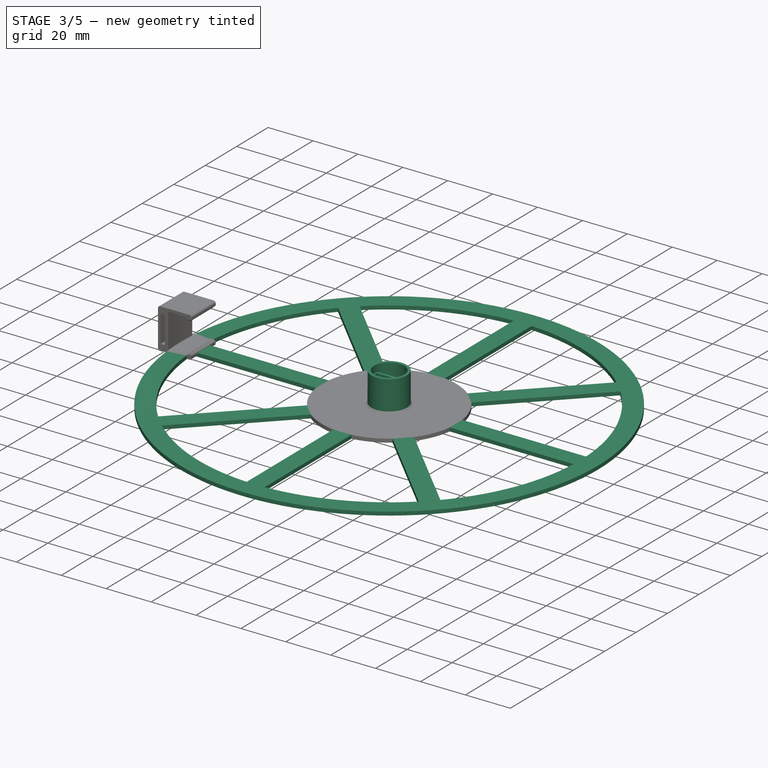
[diagram: stage 3 of 5 — iso view after this stage's code; geometry added in this stage tinted green]
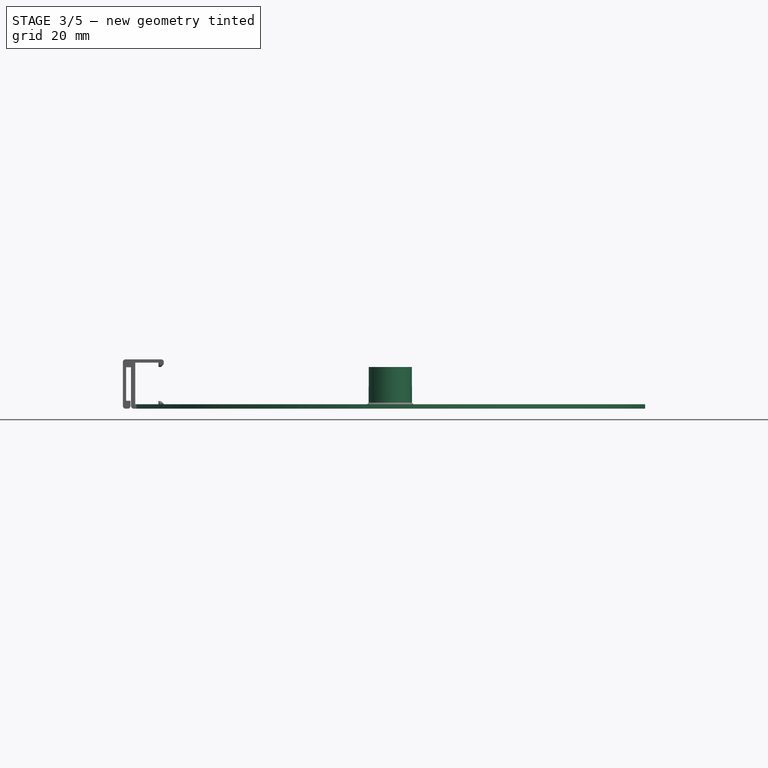
[diagram: stage 3 of 5 — front view after this stage's code; geometry added in this stage tinted green]
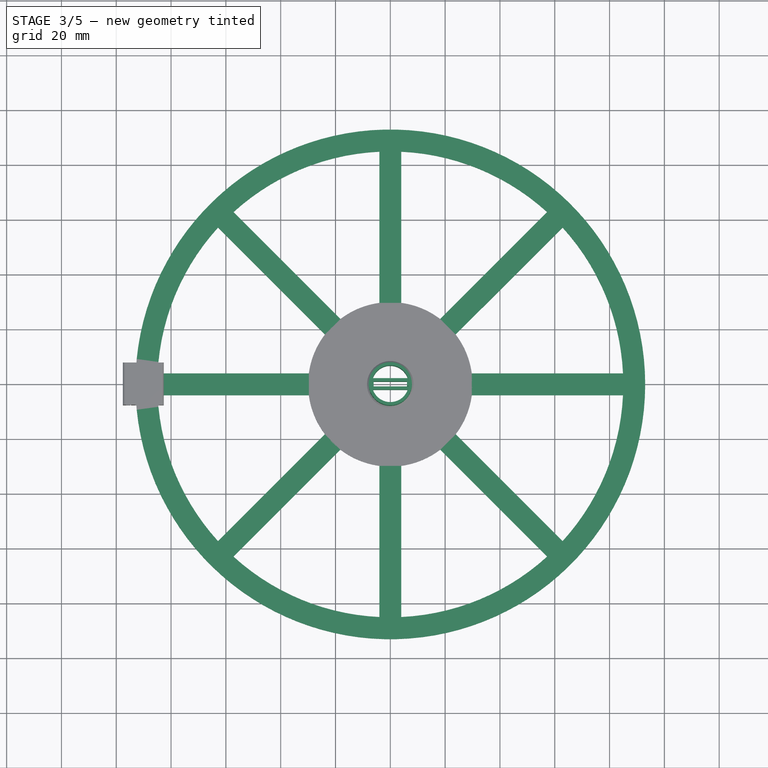
[diagram: stage 3 of 5 — top view after this stage's code; geometry added in this stage tinted green]
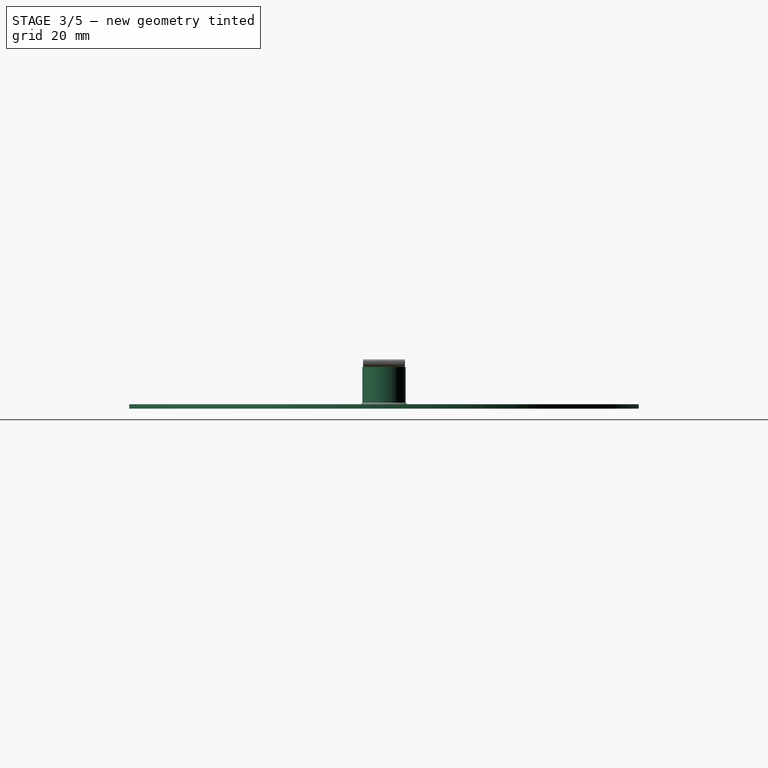
[diagram: stage 3 of 5 — right view after this stage's code; geometry added in this stage tinted green]
FEATURE [PartDesign::FeatureBase] Clone001
  BaseFeature = -> PolarPattern001
  Suppressed = false
FEATURE [PartDesign::ShapeBinder] ShapeBinder004
  Placement = pos=(0,0,1.6) rot=(0,0,1;0rad)
  Support = -> [Sketch013]
  TraceSupport = false
FEATURE [PartDesign::ShapeBinder] ShapeBinder005
  Support = -> [Sketch012]
  TraceSupport = false
FEATURE [Sketcher::SketchObject] Sketch016
  ArcFitTolerance = 1e-06
  AttachmentOffset = pos=(0,0,1.6) rot=(0,0,1;0rad)
  AttachmentSupport = -> [XY_Plane001]
  ExternalGeometry = -> [ShapeBinder004]
  FullyConstrained = true
  MakeInternals = false
  MapMode = 5
  Placement = pos=(0,0,1.6) rot=(0,0,1;0rad)
  expr: .AttachmentOffset.Base.z = Pad008.Length
  expr: Constraints[10] = <<Spreadsheet>>.ThinWallThickness
  expr: Constraints[5] = <<Spreadsheet>>.WheelTolerance
  sketch-geometry (4):
    g0: Circle CenterX=0 CenterY=0 CenterZ=0 NormalX=0 NormalY=0 NormalZ=1 AngleXU=0 Radius=7.9
    g1: LineSegment [constr] StartX=7.9 StartY=0 StartZ=0 EndX=8 EndY=0 EndZ=0
    g2: LineSegment [constr] StartX=7.9 StartY=0 StartZ=0 EndX=6.7 EndY=0 EndZ=0
    g3: Circle CenterX=0 CenterY=0 CenterZ=0 NormalX=0 NormalY=0 NormalZ=1 AngleXU=0 Radius=6.7
  constraints (11):
    c: Coincident(g0,g-3)
    c: PointOnObject(g1,g0)
    c: PointOnObject(g1,g-3)
    c: Horizontal(g1)
    c: PointOnObject(g-3,g1)
    c: DistanceX(g1,g1) = 0.1
    c: Coincident(g2,g1)
    c: Horizontal(g2)
    c: Coincident(g0,g3)
    c: PointOnObject(g2,g3)
    c: DistanceX(g2,g2) = 1.2
FEATURE [PartDesign::Pad] Pad010
  BaseFeature = -> Clone001
  Direction = (0,0,1)
  Length = 6.4
  Length2 = 10
  Profile = -> Sketch016
  ReferenceAxis = -> Sketch016 [N_Axis]
  Suppressed = false
  Type = 0
FEATURE [PartDesign::Body] Body003  label="Base_D"
  AllowCompound = false
  Group = -> [Sketch012,Pad008,Sketch014,Sketch013,Pocket003,PolarPattern001,Pocket004,Sketch015,Pad009,Chamfer005,Chamfer006]
  Origin = -> Origin003
  Tip = -> Chamfer006
FEATURE [Sketcher::SketchObject] Sketch023
  ArcFitTolerance = 1e-06
  AttachmentOffset = pos=(0,0,1.6) rot=(0,0,1;0rad)
  AttachmentSupport = -> [XY_Plane001]
  ExternalGeometry = -> [Sketch016]
  FullyConstrained = true
  MakeInternals = false
  MapMode = 5
  Placement = pos=(0,0,1.6) rot=(0,0,1;0rad)
  expr: .AttachmentOffset.Base.z = <<Sketch016>>.AttachmentOffset.Base.z
  sketch-geometry (1):
    g0: Circle CenterX=9.2461e-11 CenterY=6.79576e-11 CenterZ=0 NormalX=0 NormalY=0 NormalZ=1 AngleXU=0 Radius=6.7
  constraints (2):
    c: Equal(g0,g-3)
    c: Coincident(g0,g-3)
FEATURE [Sketcher::SketchObject] Sketch024
  ArcFitTolerance = 1e-06
  AttachmentSupport = -> [XY_Plane003]
  FullyConstrained = true
  MakeInternals = false
  MapMode = 5
  sketch-geometry (12):
    g0: LineSegment StartX=-7.3 StartY=2.1 StartZ=0 EndX=-7.3 EndY=-2.1 EndZ=0
    g1: LineSegment StartX=-7.3 StartY=-2.1 StartZ=0 EndX=7.3 EndY=-2.1 EndZ=0
    g2: LineSegment StartX=7.3 StartY=-0.7 StartZ=0 EndX=7.3 EndY=2.1 EndZ=0
    g3: LineSegment StartX=7.3 StartY=2.1 StartZ=0 EndX=-7.3 EndY=2.1 EndZ=0
    g4: LineSegment StartX=-6.1 StartY=0.9 StartZ=0 EndX=-6.1 EndY=-0.9 EndZ=0
    g5: LineSegment StartX=-6.1 StartY=-0.9 StartZ=0 EndX=7.3 EndY=-0.9 EndZ=0
    g6: LineSegment StartX=6.1 StartY=-0.7 StartZ=0 EndX=6.1 EndY=0.9 EndZ=0
    g7: LineSegment StartX=6.1 StartY=0.9 StartZ=0 EndX=-6.1 EndY=0.9 EndZ=0
    g8: LineSegment StartX=7.3 StartY=-0.9 StartZ=0 EndX=7.3 EndY=-2.1 EndZ=0
    g9: LineSegment StartX=6.1 StartY=-0.7 StartZ=0 EndX=7.3 EndY=-0.7 EndZ=0
    g10: LineSegment [constr] StartX=-6.1 StartY=0.9 StartZ=0 EndX=-6.1 EndY=2.1 EndZ=0
    g11: LineSegment [constr] StartX=-6.1 StartY=-0.9 StartZ=0 EndX=-7.3 EndY=-0.9 EndZ=0
  constraints (35):
    c: Coincident(g0,g1)
    c: Coincident(g2,g3)
    c: Coincident(g3,g0)
    c: Vertical(g0)
    c: Vertical(g2)
    c: Horizontal(g1)
    c: Horizontal(g3)
    c: Coincident(g4,g5)
    c: Coincident(g6,g7)
    c: Coincident(g7,g4)
    c: Vertical(g4)
    c: Vertical(g6)
    c: Horizontal(g7)
    c: DistanceX(g7,g7) = 12.2
    c: Equal(g1,g3)
    c: Coincident(g8,g5)
    c: Coincident(g8,g1)
    c: Vertical(g8)
    c: Coincident(g9,g6)
    c: Coincident(g9,g2)
    c: Horizontal(g9)
    c: DistanceY(g5,g2) = 0.2
    c: Horizontal(g5)
    c: DistanceY(g5,g6) = 1.8
    c: DistanceY(g6,g2) = 1.2
    c: Coincident(g10,g4)
    c: PointOnObject(g10,g3)
    c: Vertical(g10)
    c: Coincident(g11,g4)
    c: PointOnObject(g11,g0)
    c: Horizontal(g11)
    c: Equal(g9,g8)
    c: Equal(g8,g11)
    c: Equal(g11,g10)
    c: Symmetric(g4,g6,g-1)
FEATURE [PartDesign::Pad] Pad016
  Direction = (0,0,1)
  Length = 12
  Length2 = 10
  Profile = -> Sketch024
  ReferenceAxis = -> Sketch024 [N_Axis]
  Suppressed = false
  Type = 0
FEATURE [PartDesign::Fillet] Fillet
  Base = -> Pad016 [Edge11,Edge8,Edge5]
  BaseFeature = -> Pad016
  Radius = 1
  SupportTransform = false
  Suppressed = false
  UseAllEdges = false
FEATURE [PartDesign::Body] Body006  label="PairLock"
  AllowCompound = false
  Group = -> [Sketch024,Pad016,Fillet]
  Origin = -> Origin006
  Tip = -> Fillet
FEATURE [Sketcher::SketchObject] Sketch025
  ArcFitTolerance = 1e-06
  AttachmentOffset = pos=(0,0,8) rot=(0,0,1;0rad)
  AttachmentSupport = -> [XY_Plane001]
  ExternalGeometry = -> [Sketch016]
  FullyConstrained = true
  MakeInternals = false
  MapMode = 5
  Placement = pos=(0,0,8) rot=(0,0,1;0rad)
  expr: .AttachmentOffset.Base.z = <<Pad008>>.Length + <<Pad010>>.Length
  sketch-geometry (3):
    g0: Circle CenterX=-2.64e-14 CenterY=0 CenterZ=0 NormalX=0 NormalY=0 NormalZ=1 AngleXU=0 Radius=7.875
    g1: LineSegment [constr] StartX=7.875 StartY=0 StartZ=0 EndX=7.9 EndY=0 EndZ=0
    g2: Circle CenterX=-2.64e-14 CenterY=0 CenterZ=0 NormalX=0 NormalY=0 NormalZ=1 AngleXU=0 Radius=6.7
  constraints (8):
    c: PointOnObject(g1,g0)
    c: Horizontal(g1)
    c: DistanceX(g1,g1) = 0.025
    c: Coincident(g0,g2)
    c: PointOnObject(g1,g-4)
    c: Equal(g-3,g2)
    c: Coincident(g0,g-3)
    c: PointOnObject(g-3,g1)
FEATURE [PartDesign::Pad] Pad017
  BaseFeature = -> Pad010
  Direction = (0,0,1)
  Length = 7.2
  Length2 = 10
  Profile = -> Sketch025
  ReferenceAxis = -> Sketch025 [N_Axis]
  Refine = true
  Suppressed = false
  Type = 0
  expr: Length = <<Pad008>>.Length + <<Pad009>>.Length - <<Pad010>>.Length
FEATURE [PartDesign::Pocket] Pocket005
  BaseFeature = -> Pad017
  Direction = (0,0,-1)
  Length = 5
  Length2 = 5
  Profile = -> Sketch023
  ReferenceAxis = -> Sketch023 [N_Axis]
  Refine = true
  Suppressed = false
  Type = 1
FEATURE [Sketcher::SketchObject] Sketch027
  ArcFitTolerance = 1e-06
  AttachmentOffset = pos=(0,0,1.6) rot=(0,0,1;0rad)
  AttachmentSupport = -> [XY_Plane004]
  ExternalGeometry = -> [ShapeBinder008]
  FullyConstrained = true
  MakeInternals = false
  MapMode = 5
  Placement = pos=(0,0,1.6) rot=(0,0,1;0rad)
  expr: .AttachmentOffset.Base.z = <<Pad018>>.Length
  expr: Constraints[10] = <<Spreadsheet>>.ThinWallThickness
  expr: Constraints[9] = <<Spreadsheet>>.WheelTolerance
  sketch-geometry (4):
    g0: Circle CenterX=1.2547e-12 CenterY=8.65e-13 CenterZ=0 NormalX=0 NormalY=0 NormalZ=1 AngleXU=0 Radius=6.7
    g1: Circle CenterX=1.2547e-12 CenterY=8.65e-13 CenterZ=0 NormalX=0 NormalY=0 NormalZ=1 AngleXU=0 Radius=7.9
    g2: LineSegment [constr] StartX=6.7 StartY=8.65e-13 StartZ=0 EndX=7.9 EndY=8.65e-13 EndZ=0
    g3: LineSegment [constr] StartX=7.9 StartY=8.65e-13 StartZ=0 EndX=8 EndY=8.65e-13 EndZ=0
  constraints (11):
    c: Coincident(g1,g0)
    c: Coincident(g-3,g0)
    c: PointOnObject(g2,g0)
    c: PointOnObject(g2,g1)
    c: Horizontal(g2)
    c: PointOnObject(g1,g2)
    c: Coincident(g3,g2)
    c: PointOnObject(g3,g-3)
    c: Horizontal(g3)
    c: DistanceX(g2,g3) = 0.1
    c: DistanceX(g2,g2) = 1.2
FEATURE [PartDesign::Pad] Pad019
  BaseFeature = -> Pad018
  Direction = (0,0,1)
  Length = 6.4
  Length2 = 10
  Profile = -> Sketch027
  ReferenceAxis = -> Sketch027 [N_Axis]
  Suppressed = false
  Type = 0
  expr: Length = <<Pad010>>.Length
FEATURE [Sketcher::SketchObject] Sketch028
  ArcFitTolerance = 1e-06
  AttachmentOffset = pos=(0,0,8) rot=(0,0,1;0rad)
  AttachmentSupport = -> [XY_Plane004]
  ExternalGeometry = -> [Sketch027]
  FullyConstrained = true
  MakeInternals = false
  MapMode = 5
  Placement = pos=(0,0,8) rot=(0,0,1;0rad)
  expr: .AttachmentOffset.Base.z = <<Pad018>>.Length + <<Pad019>>.Length
  sketch-geometry (3):
    g0: Circle CenterX=1.2547e-12 CenterY=8.65e-13 CenterZ=0 NormalX=0 NormalY=0 NormalZ=1 AngleXU=0 Radius=6.7
    g1: Circle CenterX=1.2547e-12 CenterY=8.65e-13 CenterZ=0 NormalX=0 NormalY=0 NormalZ=1 AngleXU=0 Radius=7.875
    g2: LineSegment [constr] StartX=7.875 StartY=8.65e-13 StartZ=0 EndX=7.9 EndY=8.65e-13 EndZ=0
  constraints (8):
    c: Coincident(g1,g0)
    c: PointOnObject(g2,g1)
    c: Horizontal(g2)
    c: DistanceX(g2,g2) = 0.025
    c: PointOnObject(g-3,g2)
    c: PointOnObject(g2,g-3)
    c: Equal(g0,g-4)
    c: Coincident(g1,g-3)
FEATURE [PartDesign::Pad] Pad020
  BaseFeature = -> Pad019
  Direction = (0,0,1)
  Length = 7.2
  Length2 = 10
  Profile = -> Sketch028
  ReferenceAxis = -> Sketch028 [N_Axis]
  Refine = true
  Suppressed = false
  Type = 0
  expr: Length = <<Pad017>>.Length
FEATURE [Sketcher::SketchObject] Sketch029
  ArcFitTolerance = 1e-06
  AttachmentOffset = pos=(0,0,1.6) rot=(0,0,1;0rad)
  AttachmentSupport = -> [XY_Plane004]
  ExternalGeometry = -> [Sketch027]
  FullyConstrained = true
  MakeInternals = false
  MapMode = 5
  Placement = pos=(0,0,1.6) rot=(0,0,1;0rad)
  expr: .AttachmentOffset.Base.z = <<Pad018>>.Length
  sketch-geometry (1):
    g0: Circle CenterX=1.2505e-12 CenterY=8.58559e-11 CenterZ=0 NormalX=0 NormalY=0 NormalZ=1 AngleXU=0 Radius=6.7
  constraints (2):
    c: Coincident(g0,g-3)
    c: Equal(g0,g-3)
FEATURE [PartDesign::Pocket] Pocket006
  BaseFeature = -> Pad020
  Direction = (0,0,-1)
  Length = 5
  Length2 = 5
  Profile = -> Sketch029
  ReferenceAxis = -> Sketch029 [N_Axis]
  Suppressed = false
  Type = 1
FEATURE [PartDesign::Chamfer] Chamfer008
  Angle = 45
  Base = -> Pocket006 [Edge14]
  BaseFeature = -> Pocket006
  ChamferType = 0
  FlipDirection = false
  Size = 0.6
  Size2 = 1
  SupportTransform = false
  Suppressed = false
  UseAllEdges = false
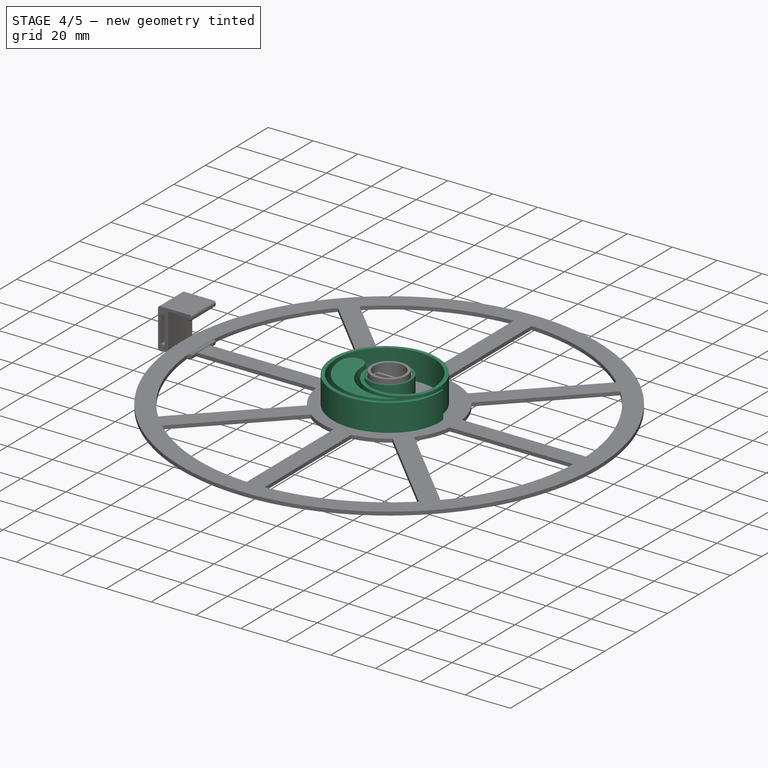
[diagram: stage 4 of 5 — iso view after this stage's code; geometry added in this stage tinted green]
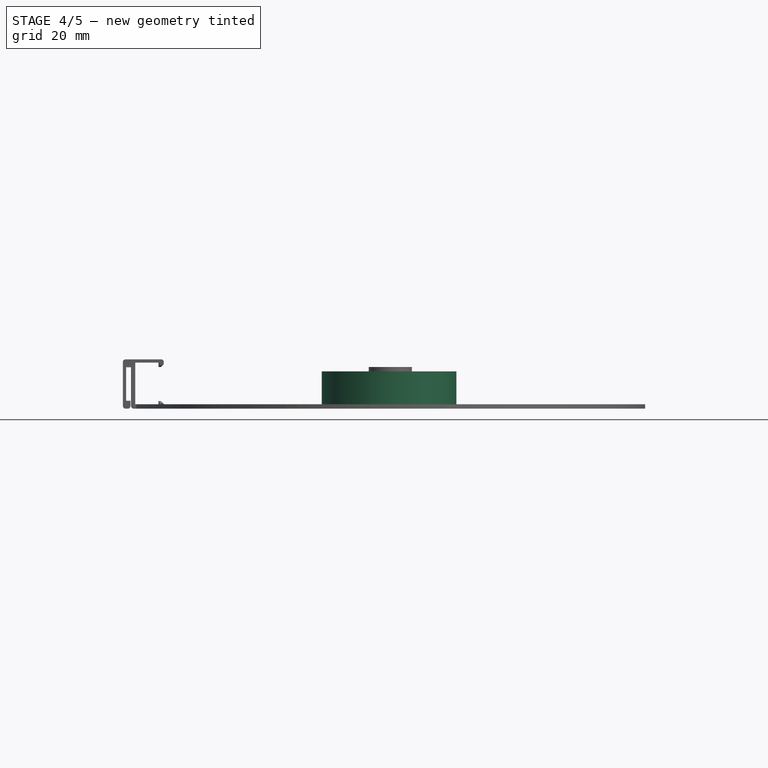
[diagram: stage 4 of 5 — front view after this stage's code; geometry added in this stage tinted green]
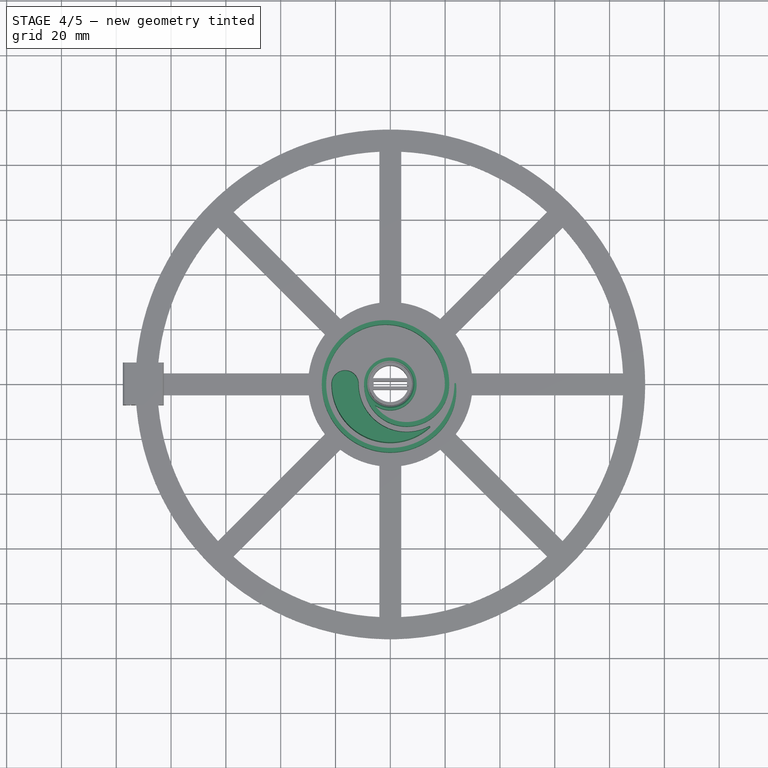
[diagram: stage 4 of 5 — top view after this stage's code; geometry added in this stage tinted green]
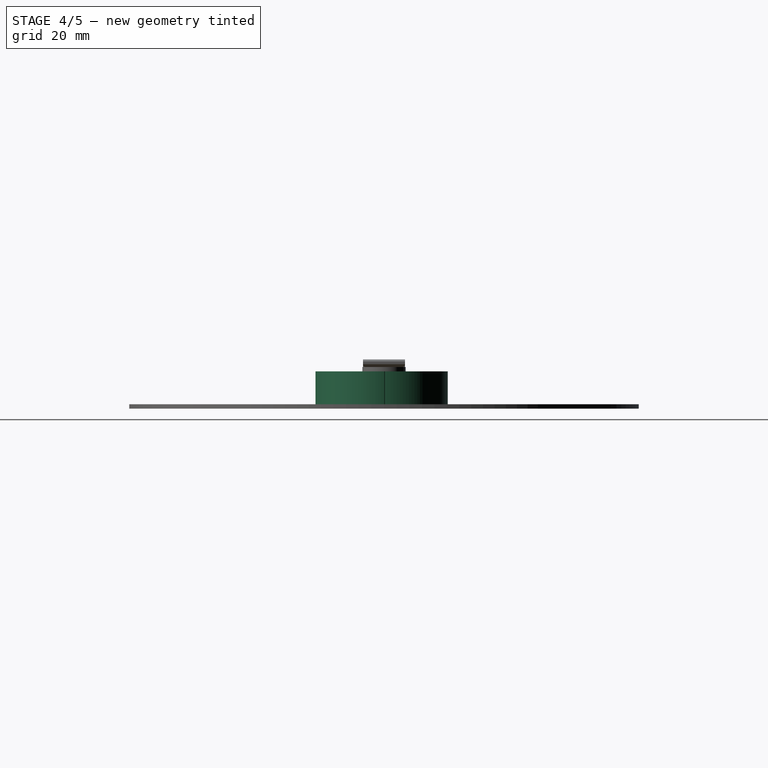
[diagram: stage 4 of 5 — right view after this stage's code; geometry added in this stage tinted green]
FEATURE [Sketcher::SketchObject] Sketch
  ArcFitTolerance = 1e-06
  AttachmentSupport = -> [XY_Plane]
  FullyConstrained = true
  MakeInternals = false
  MapMode = 5
  expr: Constraints[1] = <<Spreadsheet>>.WheelDiameter
  sketch-geometry (1):
    g0: Circle CenterX=0 CenterY=0 CenterZ=0 NormalX=0 NormalY=0 NormalZ=1 AngleXU=0 Radius=93
  constraints (2):
    c: Coincident(g0,g-1)
    c: Radius(g0) = 93
FEATURE [PartDesign::Pad] Pad
  Direction = (0,0,1)
  Length = 1.6
  Length2 = 10
  Profile = -> Sketch
  ReferenceAxis = -> Sketch [N_Axis]
  Suppressed = false
  Type = 0
FEATURE [Sketcher::SketchObject] Sketch002
  ArcFitTolerance = 1e-06
  AttachmentSupport = -> [XY_Plane]
  ExternalGeometry = -> [Sketch]
  FullyConstrained = true
  MakeInternals = false
  MapMode = 5
  sketch-geometry (18):
    g0: LineSegment StartX=-29.7321 StartY=4 StartZ=0 EndX=-84.9058 EndY=4 EndZ=0
    g1: LineSegment StartX=-62.8659 StartY=57.2091 StartZ=0 EndX=-23.8522 EndY=18.1954 EndZ=0
    g2: ArcOfCircle CenterX=0 CenterY=0 CenterZ=0 NormalX=0 NormalY=0 NormalZ=1 AngleXU=0 Radius=30 StartAngle=2.48993 EndAngle=3.00786
    g3: ArcOfCircle CenterX=0 CenterY=0 CenterZ=0 NormalX=0 NormalY=0 NormalZ=1 AngleXU=0 Radius=85 StartAngle=2.40327 EndAngle=3.09452
    g4: LineSegment [constr] StartX=0 StartY=93 StartZ=0 EndX=0 EndY=-93 EndZ=0
    g5: LineSegment StartX=-18.1954 StartY=23.8522 StartZ=0 EndX=-57.2091 EndY=62.8659 EndZ=0
    g6: LineSegment [constr] StartX=-84.9058 StartY=4 StartZ=0 EndX=-84.9058 EndY=-4 EndZ=0
    g7: LineSegment [constr] StartX=-62.8659 StartY=57.2091 StartZ=0 EndX=-57.2091 EndY=62.8659 EndZ=0
    g8: ArcOfCircle CenterX=0 CenterY=0 CenterZ=0 NormalX=0 NormalY=0 NormalZ=1 AngleXU=0 Radius=85 StartAngle=1.61787 EndAngle=2.30912
    g9: LineSegment [constr] StartX=-93 StartY=0 StartZ=0 EndX=-84.9058 EndY=0 EndZ=0
    g10: LineSegment [constr] StartX=-84.9058 StartY=0 StartZ=0 EndX=93 EndY=0 EndZ=0
    g11: ArcOfCircle CenterX=0 CenterY=0 CenterZ=0 NormalX=0 NormalY=0 NormalZ=1 AngleXU=0 Radius=30 StartAngle=1.70453 EndAngle=2.22246
    g12: LineSegment StartX=-4 StartY=29.7321 StartZ=0 EndX=-4 EndY=84.9058 EndZ=0
    g13: LineSegment [constr] StartX=-4 StartY=84.9058 StartZ=0 EndX=4 EndY=84.9058 EndZ=0
    g14: LineSegment [constr] StartX=-84.9058 StartY=4 StartZ=0 EndX=-62.8659 EndY=57.2091 EndZ=0
    g15: LineSegment [constr] StartX=-57.2091 StartY=62.8659 StartZ=0 EndX=-4 EndY=84.9058 EndZ=0
    g16: LineSegment [constr] StartX=-78.5298 StartY=32.5281 StartZ=0 EndX=-26.7922 EndY=11.0977 EndZ=0
    g17: LineSegment [constr] StartX=-78.5298 StartY=32.5281 StartZ=0 EndX=-85.9208 EndY=35.5896 EndZ=0
  constraints (51):
    c: Horizontal(g0)
    c: Coincident(g2,g0)
    c: Coincident(g2,g1)
    c: Coincident(g3,g2)
    c: Coincident(g3,g0)
    c: Coincident(g3,g1)
    c: Radius(g2) = 30
    c: Angle(g1,g0) = 0.785398
    c: Vertical(g4)
    c: Coincident(g6,g0)
    c: Coincident(g7,g1)
    c: Coincident(g7,g5)
    c: Coincident(g8,g5)
    c: Equal(g8,g3)
    c: Coincident(g9,g10)
    c: Horizontal(g9)
    c: Horizontal(g10)
    c: Symmetric(g0,g6,g9)
    c: Vertical(g6)
    c: Parallel(g1,g5)
    c: Coincident(g11,g5)
    c: Equal(g11,g2)
    c: Coincident(g12,g11)
    c: Coincident(g12,g8)
    c: Vertical(g12)
    c: Coincident(g13,g8)
    c: Symmetric(g13,g8,g4)
    c: Equal(g6,g7)
    c: Equal(g7,g13)
    c: Coincident(g14,g0)
    c: Coincident(g14,g1)
    c: Coincident(g15,g5)
    c: Coincident(g15,g8)
    c: Equal(g14,g15)
    c: PointOnObject(g10,g-3)
    c: PointOnObject(g4,g-3)
    c: Coincident(g11,g2)
    c: Coincident(g11,g8)
    c: PointOnObject(g9,g-3)
    c: PointOnObject(g4,g-3)
    c: PointOnObject(g-3,g4)
    c: PointOnObject(g-3,g10)
    c: Coincident(g-3,g2)
    c: Symmetric(g1,g0,g16)
    c: PointOnObject(g16,g3)
    c: PointOnObject(g-3,g16)
    c: Coincident(g17,g16)
    c: PointOnObject(g17,g-3)
    c: Parallel(g17,g16)
    c: Distance(g17) = 8  'SpokeWidth'
    c: Equal(g17,g6)
FEATURE [PartDesign::Pocket] Pocket
  BaseFeature = -> Pad
  Direction = (0,0,-1)
  Length = 5
  Length2 = 5
  Profile = -> Sketch002
  ReferenceAxis = -> Sketch002 [N_Axis]
  Reversed = true
  Suppressed = false
  Type = 1
FEATURE [PartDesign::PolarPattern] PolarPattern
  Angle = 360
  Axis = -> Sketch002 [N_Axis]
  BaseFeature = -> Pocket
  Mode = 0
  Occurrences = 4
  Offset = 120
  Originals = -> [Pocket]
  Suppressed = false
  TransformMode = 0
FEATURE [Sketcher::SketchObject] Sketch003
  ArcFitTolerance = 1e-06
  AttachmentOffset = pos=(0,0,1.6) rot=(0,0,1;0rad)
  AttachmentSupport = -> [XY_Plane]
  ExternalGeometry = -> [Sketch]
  FullyConstrained = true
  MakeInternals = false
  MapMode = 5
  Placement = pos=(0,0,1.6) rot=(0,0,1;0rad)
  expr: .AttachmentOffset.Base.z = <<Pad>>.Length
  sketch-geometry (1):
    g0: Circle CenterX=0 CenterY=0 CenterZ=0 NormalX=0 NormalY=0 NormalZ=1 AngleXU=0 Radius=8
  constraints (2):
    c: Radius(g0) = 8
    c: Coincident(g0,g-3)
FEATURE [Sketcher::SketchObject] Sketch001
  ArcFitTolerance = 1e-06
  AttachmentOffset = pos=(0,0,1.6) rot=(0,0,1;0rad)
  AttachmentSupport = -> [XY_Plane]
  ExternalGeometry = -> [Sketch,Sketch003]
  FullyConstrained = true
  MakeInternals = false
  MapMode = 5
  Placement = pos=(0,0,1.6) rot=(0,0,1;0rad)
  expr: .AttachmentOffset.Base.z = <<Pad>>.Length
  sketch-geometry (30):
    g0: ArcOfCircle CenterX=-1.585e-13 CenterY=-2.647e-13 CenterZ=0 NormalX=0 NormalY=0 NormalZ=1 AngleXU=0 Radius=23.4 StartAngle=3.14159 EndAngle=6.28319
    g1: ArcOfCircle CenterX=-2.6 CenterY=-2.6962e-12 CenterZ=0 NormalX=0 NormalY=0 NormalZ=1 AngleXU=0 Radius=22.4 StartAngle=4.3e-14 EndAngle=3.14159
    g2: ArcOfCircle CenterX=-2.6 CenterY=-2.6962e-12 CenterZ=0 NormalX=0 NormalY=0 NormalZ=1 AngleXU=0 Radius=20.8 StartAngle=4.63e-14 EndAngle=3.14159
    g3: LineSegment [constr] StartX=19.8 StartY=-1.7324e-12 StartZ=0 EndX=23.4 EndY=-1.7324e-12 EndZ=0
    g4: LineSegment [constr] StartX=23.4 StartY=-1.7324e-12 StartZ=0 EndX=25 EndY=-1.7324e-12 EndZ=0
    g5: LineSegment [constr] StartX=18.2 StartY=-1.7324e-12 StartZ=0 EndX=19.8 EndY=-1.7324e-12 EndZ=0
    g6: Circle CenterX=-1.585e-13 CenterY=-2.647e-13 CenterZ=0 NormalX=0 NormalY=0 NormalZ=1 AngleXU=0 Radius=8
    g7: LineSegment [constr] StartX=-21.5 StartY=-1.7324e-12 StartZ=0 EndX=-11.5 EndY=-1.7324e-12 EndZ=0
    g8: LineSegment [constr] StartX=-25 StartY=-1.7324e-12 StartZ=0 EndX=-23.4 EndY=-1.7324e-12 EndZ=0
    g9: LineSegment [constr] StartX=-23.4 StartY=-1.7324e-12 StartZ=0 EndX=-21.5 EndY=-1.7324e-12 EndZ=0
    g10: LineSegment [constr] StartX=-8 StartY=-1.7324e-12 StartZ=0 EndX=18.2 EndY=-1.7324e-12 EndZ=0
    g11: LineSegment [constr] StartX=-11.5 StartY=-1.7324e-12 StartZ=0 EndX=-9.6 EndY=-1.7324e-12 EndZ=0
    g12: LineSegment [constr] StartX=-9.6 StartY=-1.7324e-12 StartZ=0 EndX=-8 EndY=-1.7324e-12 EndZ=0
    g13: ArcOfCircle CenterX=5.1 CenterY=-3.19053e-10 CenterZ=0 NormalX=0 NormalY=0 NormalZ=1 AngleXU=0 Radius=14.7 StartAngle=3.14159 EndAngle=6.28319
    g14: ArcOfCircle CenterX=-1.585e-13 CenterY=-2.647e-13 CenterZ=0 NormalX=0 NormalY=0 NormalZ=1 AngleXU=0 Radius=9.6 StartAngle=4.1351 EndAngle=9.42478
    g15: ArcOfCircle [constr] CenterX=-1.585e-13 CenterY=-2.647e-13 CenterZ=0 NormalX=0 NormalY=0 NormalZ=1 AngleXU=0 Radius=9.6 StartAngle=3.14159 EndAngle=4.1351
    g16: ArcOfCircle [constr] CenterX=5.1 CenterY=-2.7243e-12 CenterZ=0 NormalX=0 NormalY=0 NormalZ=1 AngleXU=0 Radius=13.1 StartAngle=3.14159 EndAngle=3.8028
    g17: ArcOfCircle CenterX=5.1 CenterY=-2.7243e-12 CenterZ=0 NormalX=0 NormalY=0 NormalZ=1 AngleXU=0 Radius=13.1 StartAngle=3.8028 EndAngle=6.28319
    g18: ArcOfCircle CenterX=-16.5 CenterY=-1.733e-12 CenterZ=0 NormalX=0 NormalY=0 NormalZ=1 AngleXU=0 Radius=5 StartAngle=0 EndAngle=3.14159
    g19: ArcOfCircle CenterX=-1.585e-13 CenterY=-2.647e-13 CenterZ=0 NormalX=0 NormalY=0 NormalZ=1 AngleXU=0 Radius=21.5 StartAngle=3.14159 EndAngle=5.78388
    g20: ArcOfCircle CenterX=5.1 CenterY=-3.19053e-10 CenterZ=0 NormalX=0 NormalY=0 NormalZ=1 AngleXU=0 Radius=16.6 StartAngle=3.14159 EndAngle=5.63887
    g21: ArcOfCircle CenterX=18.6118 CenterY=-10.151 CenterZ=0 NormalX=0 NormalY=0 NormalZ=1 AngleXU=0 Radius=0.3 StartAngle=5.78388 EndAngle=8.78047
    g22: ArcOfCircle CenterX=-1.585e-13 CenterY=-2.647e-13 CenterZ=0 NormalX=0 NormalY=0 NormalZ=1 AngleXU=0 Radius=25 StartAngle=3.14159 EndAngle=5.49779
    g23: ArcOfCircle [constr] CenterX=-1.585e-13 CenterY=-2.647e-13 CenterZ=0 NormalX=0 NormalY=0 NormalZ=1 AngleXU=0 Radius=25 StartAngle=5.49779 EndAngle=6.28319
    g24: LineSegment [constr] StartX=0 StartY=0 StartZ=0 EndX=17.6777 EndY=-17.6777 EndZ=0
    g25: LineSegment [constr] StartX=-2e-16 StartY=22.2486 StartZ=0 EndX=-2e-16 EndY=-25 EndZ=0
    g26: LineSegment [constr] StartX=-2e-16 StartY=-25 StartZ=0 EndX=17.6777 EndY=-17.6777 EndZ=0
    g27: LineSegment [constr] StartX=17.6777 StartY=-17.6777 StartZ=0 EndX=25 EndY=-1.7337e-12 EndZ=0
    g28: ArcOfCircle CenterX=2.1632 CenterY=-2.1632 CenterZ=0 NormalX=0 NormalY=0 NormalZ=1 AngleXU=0 Radius=21.9408 StartAngle=5.49779 EndAngle=6.38194
    g29: ArcOfCircle CenterX=23.6985 CenterY=-0.0295778 CenterZ=0 NormalX=0 NormalY=0 NormalZ=1 AngleXU=0 Radius=0.3 StartAngle=0.0987529 EndAngle=3.04284
  constraints (79):
    c: Coincident(g0,g22)
    c: Coincident(g1,g8)
    c: Coincident(g5,g1)
    c: Coincident(g2,g1)
    c: Coincident(g3,g5)
    c: Horizontal(g3)
    c: Coincident(g4,g3)
    c: Horizontal(g4)
    c: Coincident(g23,g4)
    c: Coincident(g22,g1)
    c: Coincident(g0,g3)
    c: Coincident(g0,g2)
    c: Coincident(g10,g5)
    c: Horizontal(g5)
    c: Coincident(g10,g2)
    c: DistanceX(g3,g3) = 3.6
    c: Coincident(g6,g22)
    c: Coincident(g9,g7)
    c: Coincident(g7,g11)
    c: Horizontal(g7)
    c: Coincident(g8,g9)
    c: Horizontal(g8)
    c: Horizontal(g9)
    c: PointOnObject(g22,g8)
    c: PointOnObject(g1,g8)
    c: Coincident(g8,g0)
    c: Coincident(g12,g10)
    c: Horizontal(g10)
    c: PointOnObject(g12,g6)
    c: Coincident(g11,g12)
    c: Horizontal(g11)
    c: Horizontal(g12)
    c: Coincident(g14,g22)
    c: Equal(g9,g11)
    c: DistanceX(g11,g11) = 1.9
    c: Coincident(g6,g-3)  '__ANCHOR__'
    c: Tangent(g16,g6) = -1.5708
    c: Tangent(g17,g2) = -1.5708
    c: Tangent(g13,g1) = -1.5708
    c: Coincident(g14,g15)
    c: Coincident(g14,g15)
    c: Tangent(g13,g14) = -1.5708
    c: Coincident(g14,g11)
    c: Coincident(g16,g17)
    c: Coincident(g16,g17)
    c: Coincident(g16,g14)
    c: PointOnObject(g15,g16)
    c: Equal(g-4,g6)
    c: Coincident(g18,g7)
    c: Coincident(g18,g7)
    c: PointOnObject(g18,g7)
    c: Coincident(g19,g7)
    c: Coincident(g0,g19)
    c: Coincident(g20,g7)
    c: Coincident(g20,g13)
    c: Diameter(g21) = 0.6
    c: Coincident(g22,g23)
    c: Coincident(g22,g23)
    c: Radius(g22) = 25  'Ro'
    c: Coincident(g24,g22)
    c: PointOnObject(g25,g1)
    c: PointOnObject(g25,g22)
    c: Vertical(g25)
    c: PointOnObject(g-4,g25)
    c: Coincident(g-4,g24)
    c: Coincident(g26,g25)
    c: Coincident(g26,g22)
    c: Coincident(g27,g22)
    c: Coincident(g27,g4)
    c: Equal(g26,g27)
    c: Tangent(g19,g21) = -1.5708
    c: Tangent(g21,g20) = 1.5708
    c: Equal(g12,g8)
    c: Tangent(g28,g22) = -1.5708
    c: PointOnObject(g28,g4)
    c: Coincident(g29,g0)
    c: Tangent(g29,g28) = -1.5708
    c: Radius(g29) = 0.3
    c: DistanceX(g8,g8) = 1.6
FEATURE [PartDesign::Pocket] Pocket001
  BaseFeature = -> PolarPattern
  Direction = (0,0,-1)
  Length = 5
  Length2 = 5
  Profile = -> Sketch003
  ReferenceAxis = -> Sketch003 [N_Axis]
  Suppressed = false
  Type = 1
FEATURE [PartDesign::Pad] Pad001
  BaseFeature = -> Pocket001
  Direction = (0,0,1)
  Length = 6
  Length2 = 10
  Profile = -> Sketch001
  ReferenceAxis = -> Sketch001 [N_Axis]
  Suppressed = false
  Type = 0
FEATURE [PartDesign::FeatureBase] Clone
  BaseFeature = -> PolarPattern
  Suppressed = false
FEATURE [PartDesign::ShapeBinder] ShapeBinder
  Placement = pos=(0,0,1.6) rot=(0,0,1;0rad)
  Support = -> [Sketch001]
  TraceSupport = false
FEATURE [PartDesign::ShapeBinder] ShapeBinder001
  Support = -> [Sketch]
  TraceSupport = false
FEATURE [Sketcher::SketchObject] Sketch004
  ArcFitTolerance = 1e-06
  AttachmentOffset = pos=(0,0,1.6) rot=(0,0,1;0rad)
  AttachmentSupport = -> [XY_Plane001]
  ExternalGeometry = -> [ShapeBinder]
  FullyConstrained = true
  MakeInternals = false
  MapMode = 5
  Placement = pos=(0,0,1.6) rot=(0,0,1;0rad)
  expr: .AttachmentOffset.Base.z = Pad.Length
  expr: Constraints[10] = <<Spreadsheet>>.ThinWallThickness
  expr: Constraints[5] = <<Spreadsheet>>.WheelTolerance
  sketch-geometry (4):
    g0: Circle CenterX=0 CenterY=0 CenterZ=0 NormalX=0 NormalY=0 NormalZ=1 AngleXU=0 Radius=7.9
    g1: LineSegment [constr] StartX=7.9 StartY=0 StartZ=0 EndX=8 EndY=0 EndZ=0
    g2: LineSegment [constr] StartX=7.9 StartY=0 StartZ=0 EndX=6.7 EndY=0 EndZ=0
    g3: Circle CenterX=0 CenterY=0 CenterZ=0 NormalX=0 NormalY=0 NormalZ=1 AngleXU=0 Radius=6.7
  constraints (11):
    c: Coincident(g0,g-3)
    c: PointOnObject(g1,g0)
    c: PointOnObject(g1,g-3)
    c: Horizontal(g1)
    c: PointOnObject(g-3,g1)
    c: DistanceX(g1,g1) = 0.1
    c: Coincident(g2,g1)
    c: Horizontal(g2)
    c: Coincident(g0,g3)
    c: PointOnObject(g2,g3)
    c: DistanceX(g2,g2) = 1.2
FEATURE [PartDesign::Pad] Pad002
  BaseFeature = -> Clone
  Direction = (0,0,1)
  Length = 7.6
  Length2 = 10
  Profile = -> Sketch004
  ReferenceAxis = -> Sketch004 [N_Axis]
  Suppressed = false
  Type = 0
  expr: Length = <<Pad>>.Length + <<Pad001>>.Length
FEATURE [PartDesign::Body] Body  label="Base"
  AllowCompound = false
  Group = -> [Sketch,Pad,Sketch002,Sketch001,Pocket,PolarPattern,Pocket001,Sketch003,Pad001,Chamfer002,Chamfer]
  Origin = -> Origin
  Tip = -> Chamfer
FEATURE [Sketcher::SketchObject] Sketch011
  ArcFitTolerance = 1e-06
  AttachmentOffset = pos=(0,0,1.6) rot=(0,0,1;0rad)
  AttachmentSupport = -> [XY_Plane001]
  ExternalGeometry = -> [Sketch004]
  FullyConstrained = true
  MakeInternals = false
  MapMode = 5
  Placement = pos=(0,0,1.6) rot=(0,0,1;0rad)
  expr: .AttachmentOffset.Base.z = <<Sketch004>>.AttachmentOffset.Base.z
  sketch-geometry (1):
    g0: Circle CenterX=9.2461e-11 CenterY=6.79576e-11 CenterZ=0 NormalX=0 NormalY=0 NormalZ=1 AngleXU=0 Radius=6.7
  constraints (2):
    c: Equal(g0,g-3)
    c: Coincident(g0,g-3)
FEATURE [PartDesign::Pocket] Pocket002
  BaseFeature = -> Pad002
  Direction = (0,0,-1)
  Length = 5
  Length2 = 5
  Profile = -> Sketch011
  ReferenceAxis = -> Sketch011 [N_Axis]
  Refine = true
  Suppressed = false
  Type = 1
FEATURE [PartDesign::Chamfer] Chamfer005
  Angle = 45
  Base = -> Pad009 [Edge120]
  BaseFeature = -> Pad009
  ChamferType = 1
  FlipDirection = false
  Size = 3
  Size2 = 0.2
  SupportTransform = false
  Suppressed = false
  UseAllEdges = false
FEATURE [PartDesign::Chamfer] Chamfer006
  Angle = 45
  Base = -> Chamfer005 [Edge148]
  BaseFeature = -> Chamfer005
  ChamferType = 0
  FlipDirection = false
  Size = 0.8
  Size2 = 1
  SupportTransform = false
  Suppressed = false
  UseAllEdges = false
FEATURE [PartDesign::Chamfer] Chamfer007
  Angle = 45
  Base = -> Pocket005 [Edge101]
  BaseFeature = -> Pocket005
  ChamferType = 0
  FlipDirection = false
  Size = 0.6
  Size2 = 1
  SupportTransform = false
  Suppressed = false
  UseAllEdges = false
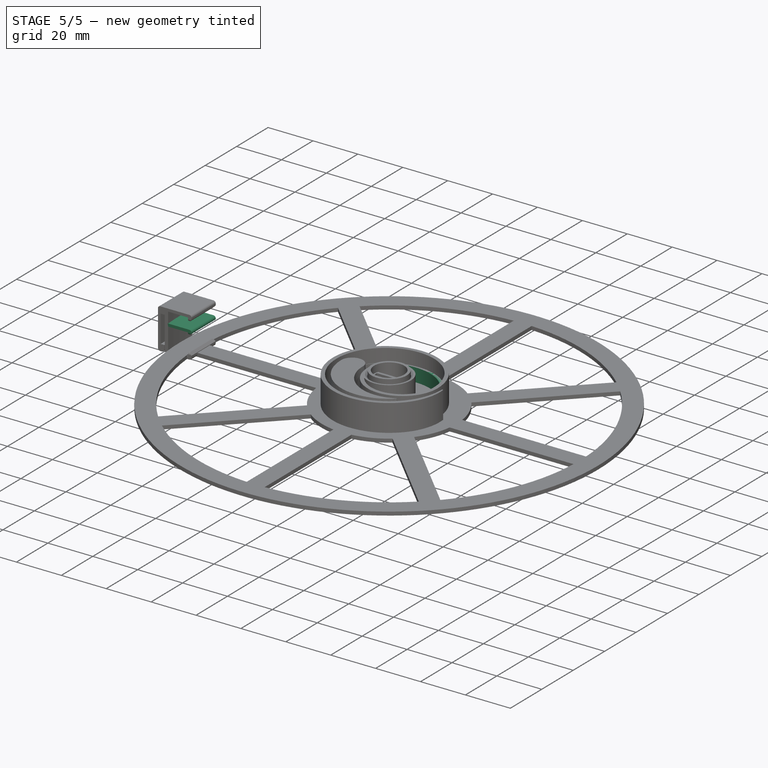
[diagram: stage 5 of 5 — iso view after this stage's code; geometry added in this stage tinted green]
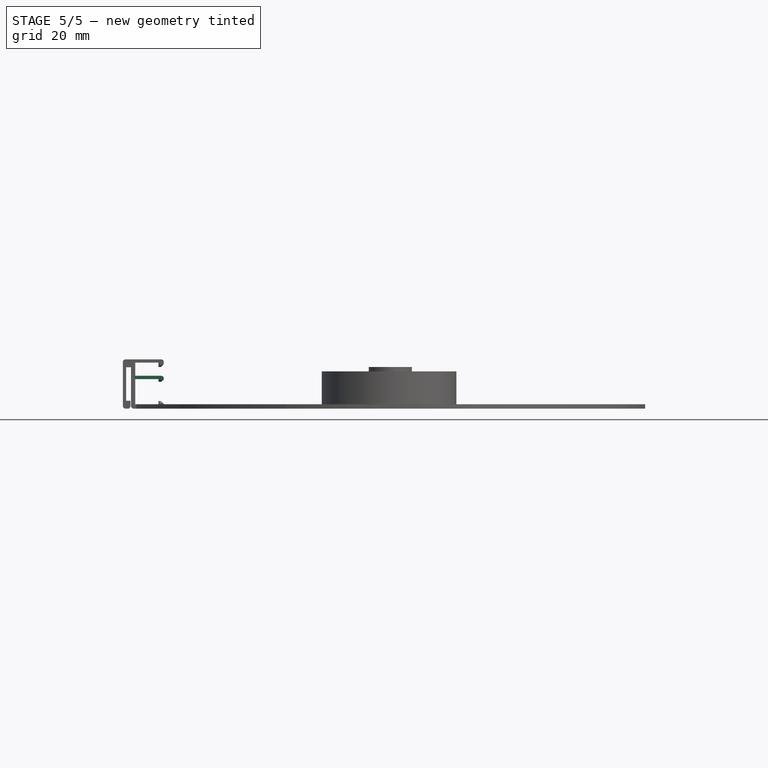
[diagram: stage 5 of 5 — front view after this stage's code; geometry added in this stage tinted green]
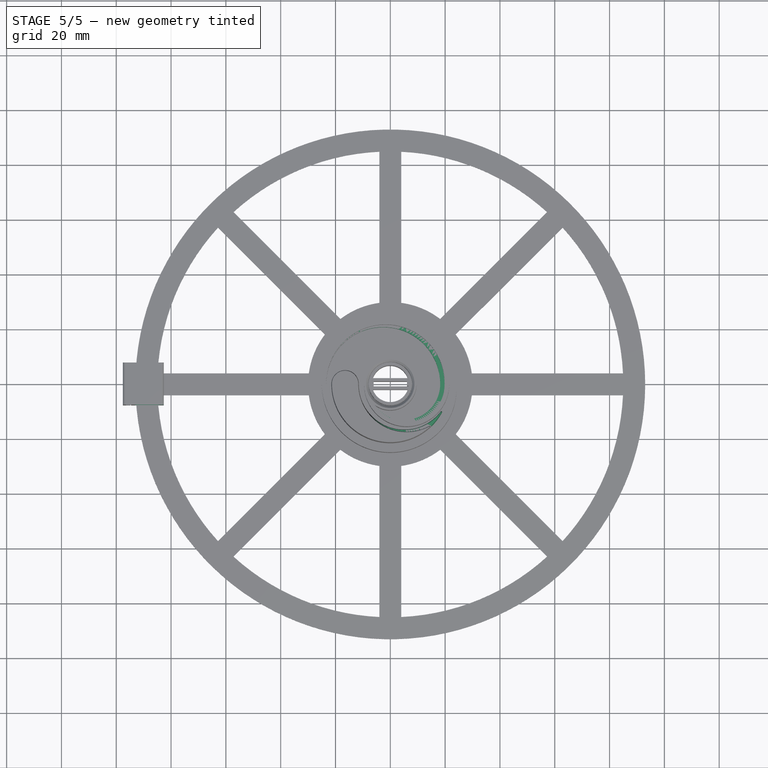
[diagram: stage 5 of 5 — top view after this stage's code; geometry added in this stage tinted green]
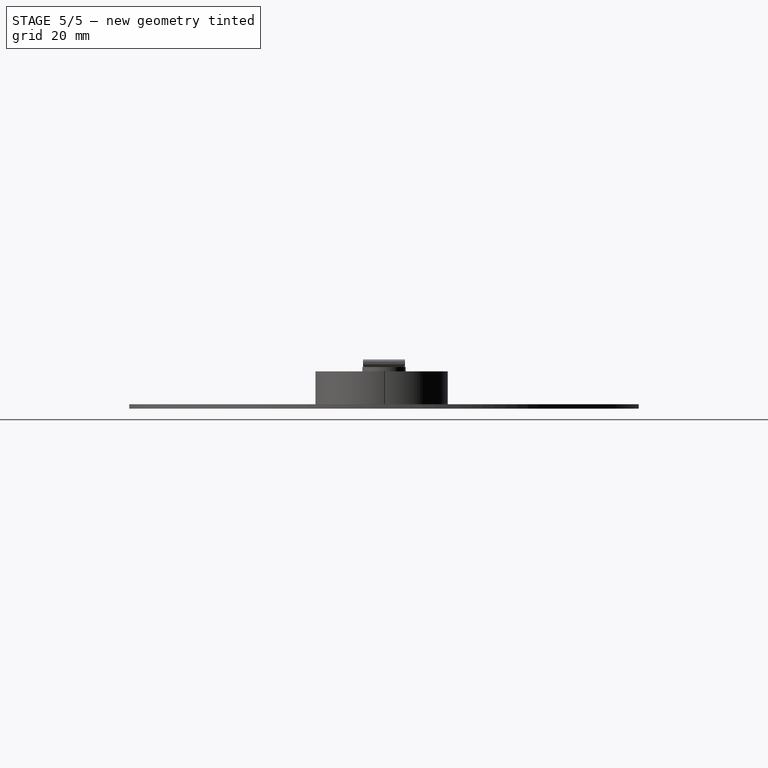
[diagram: stage 5 of 5 — right view after this stage's code; geometry added in this stage tinted green]
FEATURE [PartDesign::ShapeBinder] ShapeBinder002
  Support = -> [Sketch]
  TraceSupport = false
FEATURE [PartDesign::ShapeBinder] ShapeBinder003
  Support = -> [Sketch002]
  TraceSupport = false
FEATURE [Sketcher::SketchObject] Sketch005
  ArcFitTolerance = 1e-06
  AttachmentSupport = -> [XY_Plane002]
  ExternalGeometry = -> [ShapeBinder003,ShapeBinder002]
  FullyConstrained = true
  MakeInternals = false
  MapMode = 5
  expr: Constraints[29] = <<Spreadsheet>>.ThinWallThickness
  expr: Constraints[30] = <<Sketch002>>.Constraints.SpokeWidth + <<Spreadsheet>>.LockTolerance * 2
  expr: Constraints[46] = <<Spreadsheet>>.WallThickness
  sketch-geometry (17):
    g0: ArcOfCircle CenterX=0 CenterY=0 CenterZ=0 NormalX=0 NormalY=0 NormalZ=1 AngleXU=0 Radius=84.6 StartAngle=3.05066 EndAngle=3.23253
    g1: LineSegment StartX=-84.2505 StartY=-7.68248 StartZ=0 EndX=-93.0835 EndY=-7.68248 EndZ=0
    g2: ArcOfCircle CenterX=0 CenterY=0 CenterZ=0 NormalX=0 NormalY=0 NormalZ=1 AngleXU=0 Radius=93.4 StartAngle=3.05925 EndAngle=3.22394
    g3: LineSegment StartX=-84.2505 StartY=7.68248 StartZ=0 EndX=-93.0835 EndY=7.68248 EndZ=0
    g4: ArcOfCircle [constr] CenterX=0 CenterY=0 CenterZ=0 NormalX=0 NormalY=0 NormalZ=1 AngleXU=0 Radius=83.0067 StartAngle=3.04891 EndAngle=3.23428
    g5: LineSegment [constr] StartX=-93.4 StartY=1.78e-14 StartZ=0 EndX=-93 EndY=1.78e-14 EndZ=0
    g6: LineSegment [constr] StartX=-93 StartY=1.78e-14 StartZ=0 EndX=-85 EndY=1.78e-14 EndZ=0
    g7: LineSegment [constr] StartX=-85 StartY=1.78e-14 StartZ=0 EndX=-84.6 EndY=1.78e-14 EndZ=0
    g8: LineSegment [constr] StartX=-84.6 StartY=1.78e-14 StartZ=0 EndX=-83.0067 EndY=1.78e-14 EndZ=0
    g9: ArcOfCircle CenterX=0 CenterY=0 CenterZ=0 NormalX=0 NormalY=0 NormalZ=1 AngleXU=0 Radius=94.6 StartAngle=3.06029 EndAngle=3.22289
    g10: LineSegment StartX=-93.0835 StartY=7.68248 StartZ=0 EndX=-94.2875 EndY=7.68248 EndZ=0
    g11: LineSegment StartX=-93.0835 StartY=-7.68248 StartZ=0 EndX=-94.2875 EndY=-7.68248 EndZ=0
    g12: LineSegment [constr] StartX=-93.4 StartY=1.78e-14 StartZ=0 EndX=-94.6 EndY=1.78e-14 EndZ=0
    g13: LineSegment StartX=-84.2505 StartY=7.68248 StartZ=0 EndX=-82.6505 EndY=7.68248 EndZ=0
    g14: LineSegment StartX=-84.2505 StartY=-7.68248 StartZ=0 EndX=-82.6505 EndY=-7.68248 EndZ=0
    g15: LineSegment [constr] StartX=-23.8522 StartY=18.1954 StartZ=0 EndX=-29.7321 EndY=4 EndZ=0
    g16: LineSegment StartX=-82.6505 StartY=7.68248 StartZ=0 EndX=-82.6505 EndY=-7.68248 EndZ=0
  constraints (47):
    c: Coincident(g-4,g0)
    c: Coincident(g1,g0)
    c: Coincident(g2,g1)
    c: Coincident(g3,g0)
    c: Coincident(g3,g2)
    c: Coincident(g-4,g2)
    c: PointOnObject(g5,g2)
    c: PointOnObject(g5,g-4)
    c: Coincident(g-4,g4)
    c: PointOnObject(g6,g-3)
    c: Coincident(g5,g6)
    c: Coincident(g7,g6)
    c: PointOnObject(g7,g0)
    c: Coincident(g8,g7)
    c: PointOnObject(g8,g4)
    c: Parallel(g7,g8)
    c: Coincident(g10,g2)
    c: Coincident(g10,g9)
    c: Coincident(g11,g1)
    c: Coincident(g11,g9)
    c: Coincident(g12,g5)
    c: PointOnObject(g12,g9)
    c: Parallel(g12,g5)
    c: Equal(g7,g5)
    c: Coincident(g13,g0)
    c: Coincident(g13,g4)
    c: Coincident(g14,g0)
    c: Coincident(g14,g4)
    c: Coincident(g-4,g9)
    c: Distance(g12) = 1.2
    c: Distance(g5,g7) = 8.8
    c: Coincident(g15,g-5)
    c: Coincident(g15,g-6)
    c: Coincident(g16,g4)
    c: Coincident(g16,g4)
    c: Symmetric(g4,g4,g8)
    c: Horizontal(g6)
    c: Equal(g15,g16)
    c: Horizontal(g11)
    c: Horizontal(g1)
    c: Horizontal(g14)
    c: Horizontal(g8)
    c: Horizontal(g5)
    c: Horizontal(g10)
    c: Horizontal(g3)
    c: Horizontal(g13)
    c: DistanceX(g13,g13) = 1.6
FEATURE [Sketcher::SketchObject] Sketch006
  ArcFitTolerance = 1e-06
  AttachmentSupport = -> [XY_Plane002]
  ExternalGeometry = -> [Sketch005]
  FullyConstrained = true
  MakeInternals = false
  MapMode = 5
  sketch-geometry (4):
    g0: ArcOfCircle CenterX=-4e-15 CenterY=-1.283e-13 CenterZ=0 NormalX=0 NormalY=0 NormalZ=1 AngleXU=0 Radius=94.6 StartAngle=3.06029 EndAngle=3.22289
    g1: LineSegment StartX=-94.2875 StartY=7.68248 StartZ=0 EndX=-82.6505 EndY=7.68248 EndZ=0
    g2: LineSegment StartX=-94.2875 StartY=-7.68248 StartZ=0 EndX=-82.6505 EndY=-7.68248 EndZ=0
    g3: LineSegment StartX=-82.6505 StartY=7.68248 StartZ=0 EndX=-82.6505 EndY=-7.68248 EndZ=0
  constraints (9):
    c: Coincident(g0,g-3)
    c: Coincident(g0,g-3)
    c: Equal(g0,g-3)
    c: Coincident(g1,g0)
    c: Coincident(g2,g0)
    c: Coincident(g3,g1)
    c: Coincident(g3,g2)
    c: Coincident(g1,g-4)
    c: Coincident(g2,g-4)
FEATURE [PartDesign::Pad] Pad003
  Direction = (0,0,1)
  Length = 1.2
  Length2 = 10
  Profile = -> Sketch006
  ReferenceAxis = -> Sketch006 [N_Axis]
  Suppressed = false
  Type = 0
  expr: Length = <<Spreadsheet>>.ThinWallThickness
FEATURE [Sketcher::SketchObject] Sketch007
  ArcFitTolerance = 1e-06
  AttachmentOffset = pos=(0,0,1.2) rot=(0,0,1;0rad)
  AttachmentSupport = -> [XY_Plane002]
  ExternalGeometry = -> [Sketch005]
  FullyConstrained = true
  MakeInternals = false
  MapMode = 5
  Placement = pos=(0,0,1.2) rot=(0,0,1;0rad)
  expr: .AttachmentOffset.Base.z = <<Pad003>>.Length
  sketch-geometry (4):
    g0: ArcOfCircle CenterX=-1.7e-15 CenterY=-6.89e-14 CenterZ=0 NormalX=0 NormalY=0 NormalZ=1 AngleXU=0 Radius=94.6 StartAngle=3.06029 EndAngle=3.22289
    g1: ArcOfCircle CenterX=-9.5e-15 CenterY=6.68e-14 CenterZ=0 NormalX=0 NormalY=0 NormalZ=1 AngleXU=0 Radius=93.4 StartAngle=3.05925 EndAngle=3.22394
    g2: LineSegment StartX=-94.2875 StartY=7.68248 StartZ=0 EndX=-93.0835 EndY=7.68248 EndZ=0
    g3: LineSegment StartX=-93.0835 StartY=-7.68248 StartZ=0 EndX=-94.2875 EndY=-7.68248 EndZ=0
  constraints (10):
    c: Coincident(g0,g-3)
    c: Coincident(g0,g-3)
    c: Coincident(g1,g-4)
    c: Coincident(g1,g-4)
    c: Equal(g0,g-3)
    c: Equal(g1,g-4)
    c: Coincident(g2,g0)
    c: Coincident(g2,g1)
    c: Coincident(g3,g1)
    c: Coincident(g3,g0)
FEATURE [PartDesign::Pad] Pad004
  BaseFeature = -> Pad003
  Direction = (0,0,1)
  Length = 9.6
  Length2 = 10
  Profile = -> Sketch007
  ReferenceAxis = -> Sketch007 [N_Axis]
  Suppressed = false
  Type = 0
  expr: Length = <<Pad>>.Length * 2 + <<Pad001>>.Length + <<Spreadsheet>>.LockTolerance
FEATURE [Sketcher::SketchObject] Sketch008
  ArcFitTolerance = 1e-06
  AttachmentOffset = pos=(0,0,10.8) rot=(0,0,1;0rad)
  AttachmentSupport = -> [XY_Plane002]
  ExternalGeometry = -> [Sketch005]
  FullyConstrained = true
  MakeInternals = false
  MapMode = 5
  Placement = pos=(0,0,10.8) rot=(0,0,1;0rad)
  expr: .AttachmentOffset.Base.z = <<Sketch007>>.Placement.Base.z + <<Pad004>>.Length
  sketch-geometry (4):
    g0: ArcOfCircle CenterX=-5.9e-15 CenterY=-8.67e-14 CenterZ=0 NormalX=0 NormalY=0 NormalZ=1 AngleXU=0 Radius=94.6 StartAngle=3.06029 EndAngle=3.22289
    g1: LineSegment StartX=-94.2875 StartY=7.68248 StartZ=0 EndX=-82.6505 EndY=7.68248 EndZ=0
    g2: LineSegment StartX=-94.2875 StartY=-7.68248 StartZ=0 EndX=-82.6505 EndY=-7.68248 EndZ=0
    g3: LineSegment StartX=-82.6505 StartY=7.68248 StartZ=0 EndX=-82.6505 EndY=-7.68248 EndZ=0
  constraints (9):
    c: Coincident(g0,g-3)
    c: Coincident(g0,g-3)
    c: Equal(g0,g-3)
    c: Coincident(g1,g0)
    c: Coincident(g2,g0)
    c: Coincident(g3,g1)
    c: Coincident(g3,g2)
    c: Coincident(g1,g-4)
    c: Coincident(g2,g-4)
FEATURE [PartDesign::Pad] Pad005
  BaseFeature = -> Pad004
  Direction = (0,0,1)
  Length = 1.2
  Length2 = 10
  Profile = -> Sketch008
  ReferenceAxis = -> Sketch008 [N_Axis]
  Suppressed = false
  Type = 0
  expr: Length = <<Pad003>>.Length
FEATURE [Sketcher::SketchObject] Sketch009
  ArcFitTolerance = 1e-06
  AttachmentOffset = pos=(0,0,1.2) rot=(0,0,1;0rad)
  AttachmentSupport = -> [XY_Plane002]
  ExternalGeometry = -> [Sketch005]
  FullyConstrained = true
  MakeInternals = false
  MapMode = 5
  Placement = pos=(0,0,1.2) rot=(0,0,1;0rad)
  expr: .AttachmentOffset.Base.z = <<Pad003>>.Length
  sketch-geometry (4):
    g0: ArcOfCircle CenterX=8.646e-13 CenterY=3.7e-14 CenterZ=0 NormalX=0 NormalY=0 NormalZ=1 AngleXU=0 Radius=84.6 StartAngle=3.05066 EndAngle=3.23253
    g1: LineSegment StartX=-84.2505 StartY=7.68248 StartZ=0 EndX=-82.6505 EndY=7.68248 EndZ=0
    g2: LineSegment StartX=-82.6505 StartY=7.68248 StartZ=0 EndX=-82.6505 EndY=-7.68248 EndZ=0
    g3: LineSegment StartX=-82.6505 StartY=-7.68248 StartZ=0 EndX=-84.2505 EndY=-7.68248 EndZ=0
  constraints (9):
    c: Coincident(g0,g-3)
    c: Coincident(g0,g-3)
    c: Equal(g0,g-3)
    c: Coincident(g0,g1)
    c: Coincident(g1,g2)
    c: Coincident(g2,g3)
    c: Coincident(g3,g0)
    c: Coincident(g1,g-4)
    c: Coincident(g2,g-4)
FEATURE [PartDesign::Pad] Pad006
  BaseFeature = -> Pad005
  Direction = (0,0,1)
  Length = 1
  Length2 = 10
  Profile = -> Sketch009
  ReferenceAxis = -> Sketch009 [N_Axis]
  Suppressed = false
  Type = 0
FEATURE [Sketcher::SketchObject] Sketch010
  ArcFitTolerance = 1e-06
  AttachmentOffset = pos=(0,0,10.8) rot=(0,0,1;0rad)
  AttachmentSupport = -> [XY_Plane002]
  ExternalGeometry = -> [Sketch005]
  FullyConstrained = true
  MakeInternals = false
  MapMode = 5
  Placement = pos=(0,0,10.8) rot=(0,0,1;0rad)
  expr: .AttachmentOffset.Base.z = <<Sketch007>>.Placement.Base.z + <<Pad004>>.Length
  sketch-geometry (4):
    g0: ArcOfCircle CenterX=8.687e-13 CenterY=-3.89e-14 CenterZ=0 NormalX=0 NormalY=0 NormalZ=1 AngleXU=0 Radius=84.6 StartAngle=3.05066 EndAngle=3.23253
    g1: LineSegment StartX=-84.2505 StartY=7.68248 StartZ=0 EndX=-82.6505 EndY=7.68248 EndZ=0
    g2: LineSegment StartX=-82.6505 StartY=7.68248 StartZ=0 EndX=-82.6505 EndY=-7.68248 EndZ=0
    g3: LineSegment StartX=-82.6505 StartY=-7.68248 StartZ=0 EndX=-84.2505 EndY=-7.68248 EndZ=0
  constraints (9):
    c: Coincident(g0,g-3)
    c: Coincident(g0,g-3)
    c: Equal(g0,g-3)
    c: Coincident(g0,g1)
    c: Coincident(g1,g2)
    c: Coincident(g2,g3)
    c: Coincident(g3,g0)
    c: Coincident(g1,g-4)
    c: Coincident(g2,g-4)
FEATURE [PartDesign::Pad] Pad007
  BaseFeature = -> Pad006
  Direction = (0,0,1)
  Length = 1
  Length2 = 10
  Profile = -> Sketch010
  ReferenceAxis = -> Sketch010 [N_Axis]
  Refine = true
  Reversed = true
  Suppressed = false
  Type = 0
  expr: Length = <<Pad006>>.Length
FEATURE [PartDesign::Chamfer] Chamfer001
  Angle = 45
  Base = -> Pad007 [Edge24,Edge30]
  BaseFeature = -> Pad007
  ChamferType = 1
  FlipDirection = false
  Size = 1
  Size2 = 0.8
  SupportTransform = false
  Suppressed = false
  UseAllEdges = false
FEATURE [PartDesign::Chamfer] Chamfer002
  Angle = 45
  Base = -> Pad001 [Edge120]
  BaseFeature = -> Pad001
  ChamferType = 1
  FlipDirection = false
  Size = 3
  Size2 = 0.2
  SupportTransform = false
  Suppressed = false
  UseAllEdges = false
FEATURE [Spreadsheet::Sheet] Spreadsheet
  cells = B2='WheelDiameter; C2(WheelDiameter)==93 mm; B3='WheelTolerance; C3(WheelTolerance)==0.1 mm; B4='LockTolerance; C4(LockTolerance)==0.4 mm; B5='WallThickness; C5(WallThickness)==1.6 mm; B6='ThinWallThickness; C6(ThinWallThickness)==1.2 mm
FEATURE [PartDesign::Fillet] Fillet001
  Base = -> Chamfer001 [Edge25,Edge20,Edge29,Edge16,Edge22,Edge40,Edge13,Edge4]
  BaseFeature = -> Chamfer001
  Radius = 1
  SupportTransform = false
  Suppressed = false
  UseAllEdges = false
FEATURE [PartDesign::Body] Body002  label="Lock"
  AllowCompound = false
  Group = -> [ShapeBinder002,ShapeBinder003,Sketch005,Sketch006,Pad003,Sketch007,Pad004,Sketch008,Pad005,Sketch009,Pad006,Sketch010,Pad007,Chamfer001,Fillet001]
  Origin = -> Origin002
  Tip = -> Fillet001
FEATURE [PartDesign::Chamfer] Chamfer
  Angle = 45
  Base = -> Chamfer002 [Edge148]
  BaseFeature = -> Chamfer002
  ChamferType = 0
  FlipDirection = false
  Size = 0.8
  Size2 = 1
  SupportTransform = false
  Suppressed = false
  UseAllEdges = false
FEATURE [PartDesign::Chamfer] Chamfer003
  Angle = 45
  Base = -> Pocket002 [Edge61]
  BaseFeature = -> Pocket002
  ChamferType = 0
  FlipDirection = false
  Size = 0.6
  Size2 = 1
  SupportTransform = false
  Suppressed = false
  UseAllEdges = false
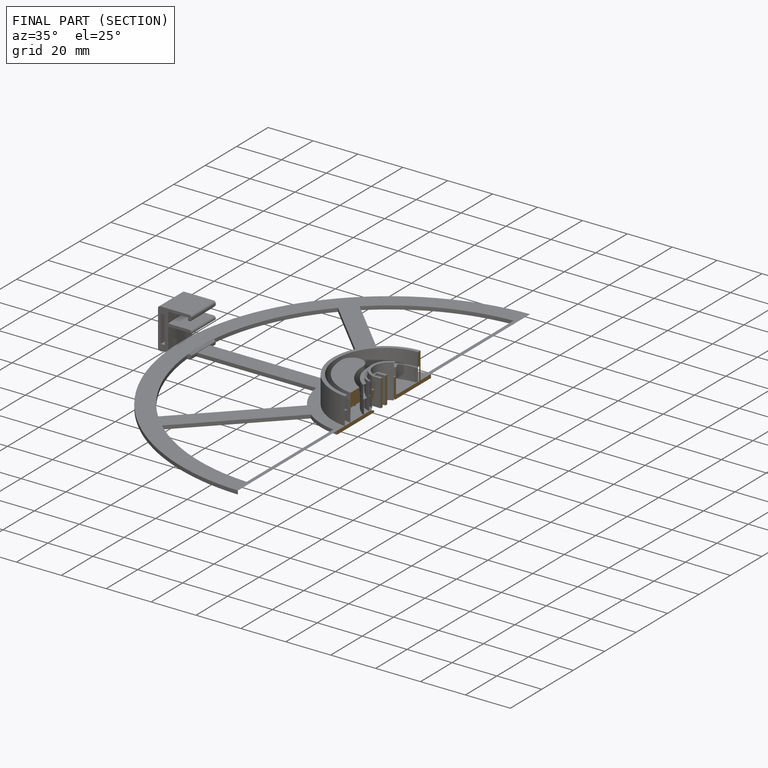
[diagram: finished part — half-section view (interior)]
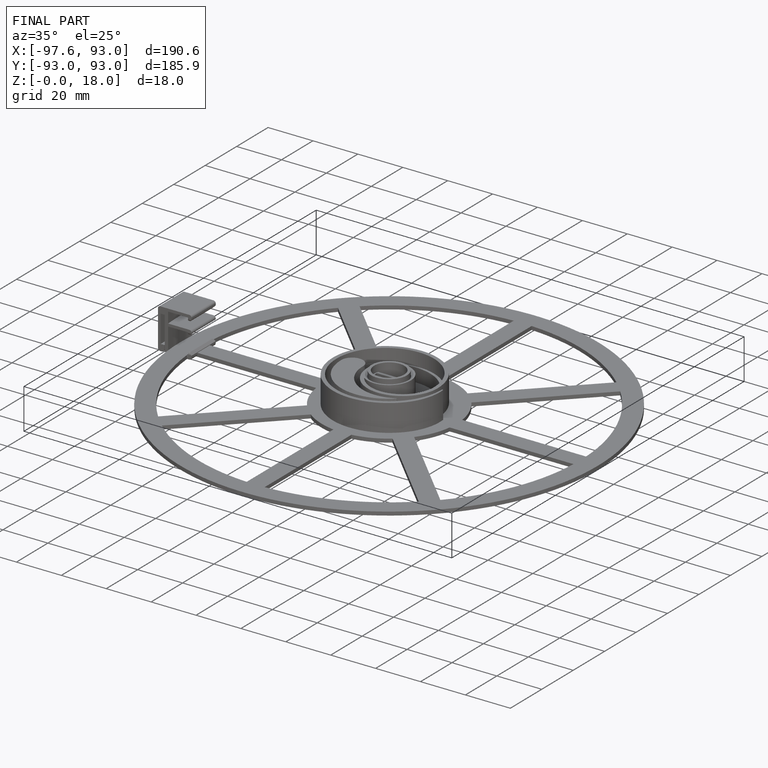
[diagram: finished part — iso view with bounding-box wireframe]
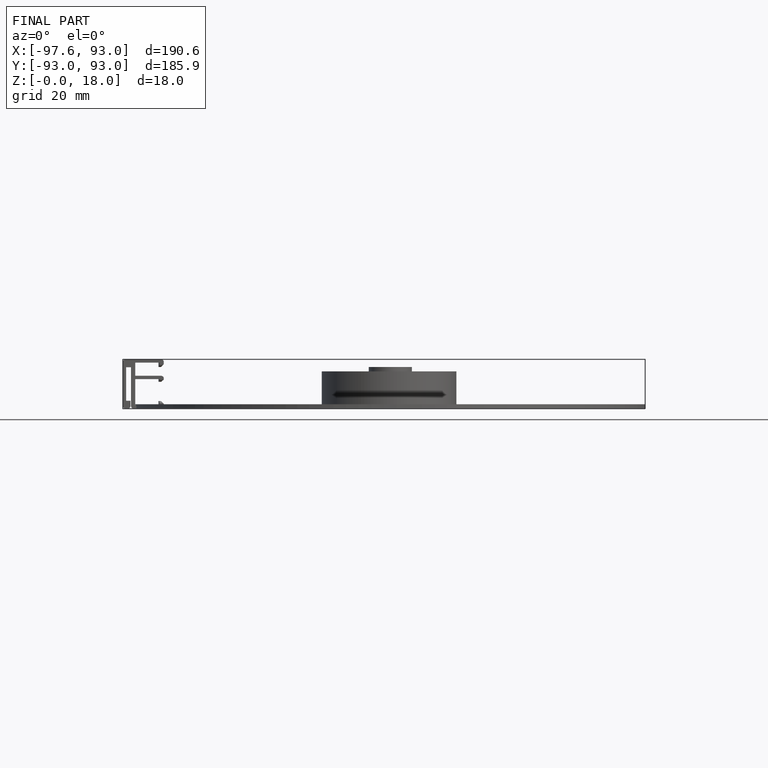
[diagram: finished part — front view with bounding-box wireframe]
